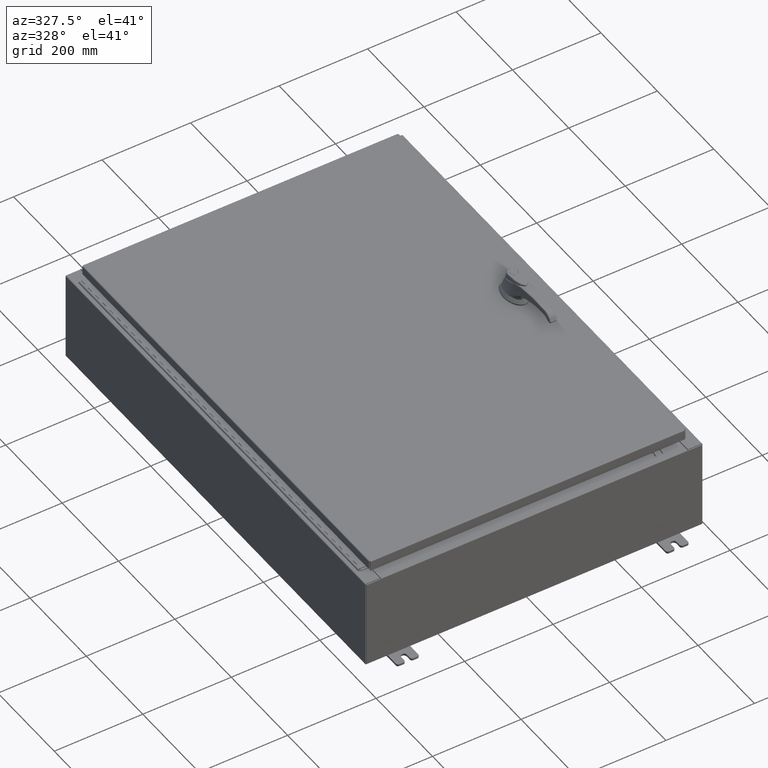
[diagram: clean part render]
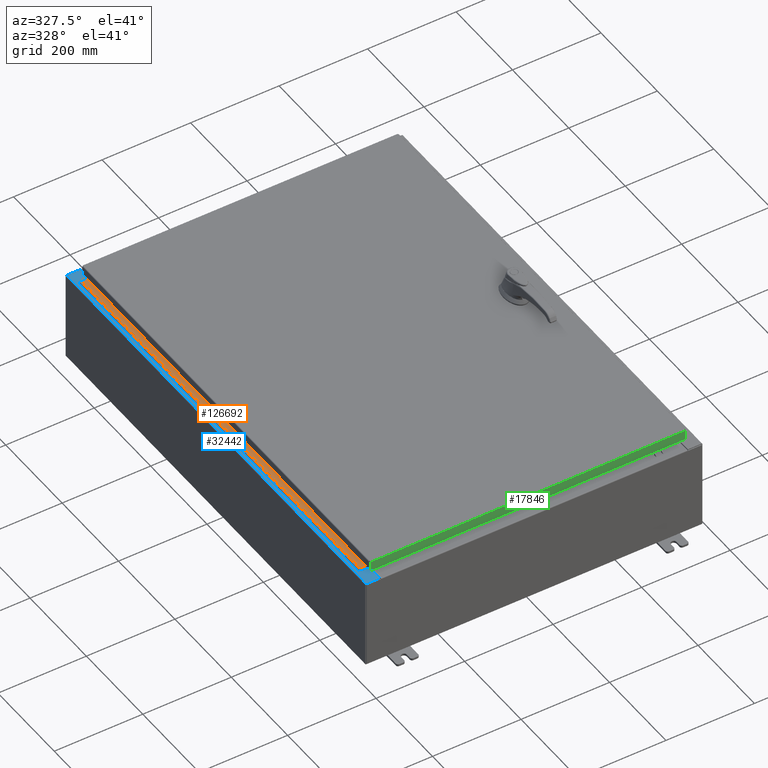
[diagram: same view with three faces highlighted in distinct colors, each labeled with its STEP entity id]
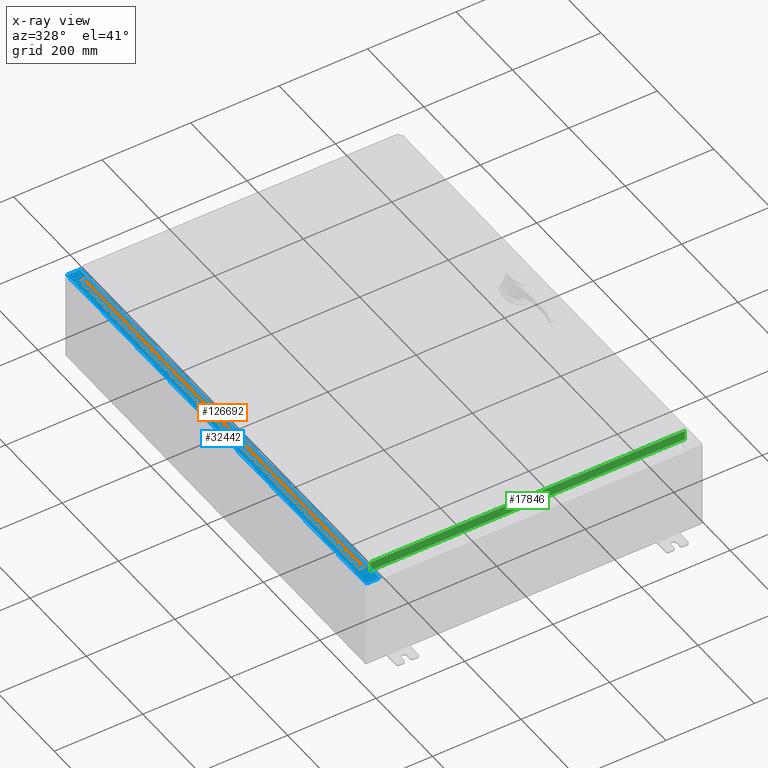
[diagram: x-ray of the same camera — body ghosted, the three highlighted faces saturated]
A machine part, auxiliary view with three faces highlighted in distinct colors.
The next image is the same camera in x-ray (body ghosted, the three faces saturated) — at least one of them is partly hidden behind the body in this view.
Their STEP definitions:

[orange] entity #126692 — the highlighted planar face has unit normal (-0, -0, 1).
#175 = EDGE_CURVE ( 'NONE', #115456, #81773, #64029, .T. ) ;
#187 = EDGE_CURVE ( 'NONE', #94626, #91647, #34605, .T. ) ;
#293 = DIRECTION ( 'NONE',  ( 0.0000000000000000000, -0.0000000000000000000, -1.000000000000000000 ) ) ;
#372 = DIRECTION ( 'NONE',  ( 3.389037039080723100E-015, 1.000000000000000000, -0.0000000000000000000 ) ) ;
#484 = CARTESIAN_POINT ( 'NONE',  ( -0.6869999999999982800, 0.5504999999999997700, -2.000000000000000000 ) ) ;
#503 = VERTEX_POINT ( 'NONE', #51848 ) ;
#869 = LINE ( 'NONE', #69759, #50854 ) ;
#880 = ORIENTED_EDGE ( 'NONE', *, *, #39815, .T. ) ;
#903 = ORIENTED_EDGE ( 'NONE', *, *, #44794, .F. ) ;
#934 = DIRECTION ( 'NONE',  ( 0.0000000000000000000, -0.0000000000000000000, -1.000000000000000000 ) ) ;
#976 = VERTEX_POINT ( 'NONE', #123675 ) ;
#980 = EDGE_CURVE ( 'NONE', #58902, #81243, #54612, .T. ) ;
#1027 = VERTEX_POINT ( 'NONE', #59810 ) ;
#1055 = CARTESIAN_POINT ( 'NONE',  ( -0.6869999999999973900, 0.8004999999999995500, -32.00000000000000000 ) ) ;
#1148 = VECTOR ( 'NONE', #77617, 39.37007874015748100 ) ;
#1264 = ORIENTED_EDGE ( 'NONE', *, *, #107978, .F. ) ;
#1619 = ORIENTED_EDGE ( 'NONE', *, *, #109199, .F. ) ;
#1907 = ORIENTED_EDGE ( 'NONE', *, *, #124795, .F. ) ;
#1955 = CARTESIAN_POINT ( 'NONE',  ( -0.6869999999999978300, 0.6754999999999996600, -26.50000000000000400 ) ) ;
#1970 = CARTESIAN_POINT ( 'NONE',  ( -0.6869999999999982800, 0.5504999999999997700, -26.50000000000000400 ) ) ;
#2025 = LINE ( 'NONE', #35999, #78300 ) ;
#2240 = CARTESIAN_POINT ( 'NONE',  ( -0.6869999999999978300, 0.6754999999999996600, -39.00000000000000000 ) ) ;
#2308 = VECTOR ( 'NONE', #5452, 39.37007874015748100 ) ;
#2327 = DIRECTION ( 'NONE',  ( 3.369016658928398200E-015, 1.000000000000000000, 0.0000000000000000000 ) ) ;
#2466 = VECTOR ( 'NONE', #12956, 39.37007874015748100 ) ;
#2498 = CARTESIAN_POINT ( 'NONE',  ( -0.6869999999999978300, 0.6754999999999996600, -17.50000000000000000 ) ) ;
#2501 = LINE ( 'NONE', #102127, #52457 ) ;
#2673 = DIRECTION ( 'NONE',  ( 0.0000000000000000000, 0.0000000000000000000, 1.000000000000000000 ) ) ;
#2725 = CARTESIAN_POINT ( 'NONE',  ( -0.6869999999999978300, 0.6754999999999996600, -31.50000000000000400 ) ) ;
#2768 = VECTOR ( 'NONE', #45110, 39.37007874015748100 ) ;
#2813 = LINE ( 'NONE', #123789, #26323 ) ;
#2822 = LINE ( 'NONE', #34835, #82202 ) ;
#2867 = EDGE_CURVE ( 'NONE', #102564, #105370, #69766, .T. ) ;
#3057 = ORIENTED_EDGE ( 'NONE', *, *, #106097, .F. ) ;
#3262 = CARTESIAN_POINT ( 'NONE',  ( -0.6869999999999973900, 0.8004999999999995500, -33.00000000000000000 ) ) ;
#3361 = VERTEX_POINT ( 'NONE', #116726 ) ;
#3413 = ORIENTED_EDGE ( 'NONE', *, *, #4057, .F. ) ;
#3439 = VERTEX_POINT ( 'NONE', #125981 ) ;
#3622 = VECTOR ( 'NONE', #9650, 39.37007874015748100 ) ;
#3660 = VERTEX_POINT ( 'NONE', #48473 ) ;
#3661 = DIRECTION ( 'NONE',  ( -3.389037039080723100E-015, -1.000000000000000000, 0.0000000000000000000 ) ) ;
#3753 = ORIENTED_EDGE ( 'NONE', *, *, #13987, .F. ) ;
#3798 = DIRECTION ( 'NONE',  ( 3.389037039080723100E-015, 1.000000000000000000, -0.0000000000000000000 ) ) ;
#3870 = CARTESIAN_POINT ( 'NONE',  ( -0.6869999999999978300, 0.6754999999999996600, -39.00000000000000000 ) ) ;
#3901 = ORIENTED_EDGE ( 'NONE', *, *, #23646, .F. ) ;
#4057 = EDGE_CURVE ( 'NONE', #6768, #53997, #72620, .T. ) ;
#4171 = CARTESIAN_POINT ( 'NONE',  ( -0.6869999999999978300, 0.6754999999999996600, -24.50000000000000000 ) ) ;
#4223 = EDGE_CURVE ( 'NONE', #124422, #89848, #95755, .T. ) ;
#4757 = VERTEX_POINT ( 'NONE', #60919 ) ;
#4896 = DIRECTION ( 'NONE',  ( 0.0000000000000000000, -0.0000000000000000000, -1.000000000000000000 ) ) ;
#5174 = LINE ( 'NONE', #23987, #81365 ) ;
#5382 = EDGE_CURVE ( 'NONE', #121392, #127437, #64661, .T. ) ;
#5430 = LINE ( 'NONE', #96070, #81622 ) ;
#5440 = VECTOR ( 'NONE', #38479, 39.37007874015748100 ) ;
#5452 = DIRECTION ( 'NONE',  ( -3.389037039080723100E-015, -1.000000000000000000, 0.0000000000000000000 ) ) ;
#5629 = VECTOR ( 'NONE', #43706, 39.37007874015748100 ) ;
#5781 = CARTESIAN_POINT ( 'NONE',  ( -0.6869999999999973900, 0.8004999999999995500, -17.99999999999999600 ) ) ;
#5974 = EDGE_CURVE ( 'NONE', #78162, #67718, #73830, .T. ) ;
#5994 = EDGE_CURVE ( 'NONE', #59320, #44848, #100111, .T. ) ;
#6074 = ORIENTED_EDGE ( 'NONE', *, *, #12068, .F. ) ;
#6197 = DIRECTION ( 'NONE',  ( 3.389037039080723100E-015, 1.000000000000000000, -0.0000000000000000000 ) ) ;
#6231 = DIRECTION ( 'NONE',  ( 0.0000000000000000000, 0.0000000000000000000, 1.000000000000000000 ) ) ;
#6401 = CARTESIAN_POINT ( 'NONE',  ( -0.6869999999999973900, 0.8004999999999995500, -9.500000000000000000 ) ) ;
#6423 = ORIENTED_EDGE ( 'NONE', *, *, #65584, .F. ) ;
#6530 = DIRECTION ( 'NONE',  ( -3.389037039080723100E-015, -1.000000000000000000, 0.0000000000000000000 ) ) ;
#6609 = VECTOR ( 'NONE', #122423, 39.37007874015748100 ) ;
#6645 = LINE ( 'NONE', #16248, #56498 ) ;
#6698 = VERTEX_POINT ( 'NONE', #28173 ) ;
#6768 = VERTEX_POINT ( 'NONE', #85118 ) ;
#6950 = ORIENTED_EDGE ( 'NONE', *, *, #48762, .F. ) ;
#7030 = VECTOR ( 'NONE', #90597, 39.37007874015748100 ) ;
#7031 = VECTOR ( 'NONE', #99656, 39.37007874015748100 ) ;
#7154 = VECTOR ( 'NONE', #34036, 39.37007874015748100 ) ;
#7316 = DIRECTION ( 'NONE',  ( 3.389037039080723100E-015, 1.000000000000000000, -0.0000000000000000000 ) ) ;
#7479 = LINE ( 'NONE', #88926, #31008 ) ;
#7487 = VECTOR ( 'NONE', #100005, 39.37007874015748100 ) ;
#7726 = CARTESIAN_POINT ( 'NONE',  ( -0.6869999999999973900, 0.8004999999999995500, -17.50000000000000000 ) ) ;
#7941 = ORIENTED_EDGE ( 'NONE', *, *, #12283, .T. ) ;
#7946 = LINE ( 'NONE', #83815, #54705 ) ;
#7957 = VECTOR ( 'NONE', #32364, 39.37007874015748100 ) ;
#7981 = CARTESIAN_POINT ( 'NONE',  ( -0.6869999999999978300, 0.6754999999999996600, -33.50000000000000000 ) ) ;
#8068 = CARTESIAN_POINT ( 'NONE',  ( -0.6869999999999973900, 0.8004999999999995500, -25.50000000000000400 ) ) ;
#8192 = EDGE_CURVE ( 'NONE', #124258, #127504, #101489, .T. ) ;
#8220 = EDGE_CURVE ( 'NONE', #20596, #122475, #22464, .T. ) ;
#8222 = VERTEX_POINT ( 'NONE', #108536 ) ;
#8236 = DIRECTION ( 'NONE',  ( -3.389037039080723100E-015, -1.000000000000000000, 0.0000000000000000000 ) ) ;
#8290 = EDGE_CURVE ( 'NONE', #56542, #115101, #121738, .T. ) ;
#8345 = ORIENTED_EDGE ( 'NONE', *, *, #42714, .F. ) ;
#8875 = DIRECTION ( 'NONE',  ( 0.0000000000000000000, 0.0000000000000000000, 1.000000000000000000 ) ) ;
#9023 = EDGE_CURVE ( 'NONE', #503, #28543, #75098, .T. ) ;
#9244 = LINE ( 'NONE', #90468, #23323 ) ;
#9255 = VECTOR ( 'NONE', #27606, 39.37007874015748100 ) ;
#9621 = LINE ( 'NONE', #15127, #56330 ) ;
#9639 = LINE ( 'NONE', #3262, #85751 ) ;
#9650 = DIRECTION ( 'NONE',  ( 0.0000000000000000000, 0.0000000000000000000, 1.000000000000000000 ) ) ;
#9785 = ORIENTED_EDGE ( 'NONE', *, *, #9023, .F. ) ;
#9802 = CARTESIAN_POINT ( 'NONE',  ( -0.6869999999999978300, 0.6754999999999996600, -36.50000000000000000 ) ) ;
#9823 = DIRECTION ( 'NONE',  ( 0.0000000000000000000, 0.0000000000000000000, 1.000000000000000000 ) ) ;
#9992 = LINE ( 'NONE', #125691, #112484 ) ;
#10074 = VERTEX_POINT ( 'NONE', #92505 ) ;
#10157 = LINE ( 'NONE', #80278, #39882 ) ;
#10289 = LINE ( 'NONE', #93268, #7154 ) ;
#10368 = VECTOR ( 'NONE', #22118, 39.37007874015748100 ) ;
#10490 = CARTESIAN_POINT ( 'NONE',  ( -0.6869999999999982800, 0.5504999999999997700, -37.50000000000000000 ) ) ;
#10516 = LINE ( 'NONE', #100099, #83562 ) ;
#10578 = DIRECTION ( 'NONE',  ( 3.389037039080723100E-015, 1.000000000000000000, -0.0000000000000000000 ) ) ;
#10582 = VECTOR ( 'NONE', #107257, 39.37007874015748100 ) ;
#10676 = CARTESIAN_POINT ( 'NONE',  ( -0.6869999999999973900, 0.8004999999999995500, -21.50000000000000400 ) ) ;
#10801 = LINE ( 'NONE', #63245, #86865 ) ;
#10819 = CARTESIAN_POINT ( 'NONE',  ( -0.6869999999999973900, 0.8004999999999995500, -29.50000000000000000 ) ) ;
#11234 = DIRECTION ( 'NONE',  ( 0.0000000000000000000, -0.0000000000000000000, -1.000000000000000000 ) ) ;
#11307 = EDGE_CURVE ( 'NONE', #50480, #31723, #116204, .T. ) ;
#11441 = VECTOR ( 'NONE', #75773, 39.37007874015748100 ) ;
#11533 = DIRECTION ( 'NONE',  ( -3.389037039080723100E-015, -1.000000000000000000, 0.0000000000000000000 ) ) ;
#11552 = ORIENTED_EDGE ( 'NONE', *, *, #77340, .F. ) ;
#11590 = VERTEX_POINT ( 'NONE', #74345 ) ;
#11733 = VECTOR ( 'NONE', #125316, 39.37007874015748100 ) ;
#11754 = CARTESIAN_POINT ( 'NONE',  ( -0.6869999999999978300, 0.6754999999999996600, -39.00000000000000000 ) ) ;
#11851 = DIRECTION ( 'NONE',  ( 0.0000000000000000000, -0.0000000000000000000, -1.000000000000000000 ) ) ;
#12068 = EDGE_CURVE ( 'NONE', #21730, #41898, #15359, .T. ) ;
#12080 = CARTESIAN_POINT ( 'NONE',  ( -0.6869999999999978300, 0.6754999999999996600, -28.00000000000000000 ) ) ;
#12283 = EDGE_CURVE ( 'NONE', #63879, #85198, #2813, .T. ) ;
#12370 = ORIENTED_EDGE ( 'NONE', *, *, #15090, .F. ) ;
#12443 = EDGE_CURVE ( 'NONE', #66287, #10074, #13710, .T. ) ;
#12523 = ORIENTED_EDGE ( 'NONE', *, *, #120612, .T. ) ;
#12765 = CARTESIAN_POINT ( 'NONE',  ( -0.6869999999999982800, 0.5504999999999997700, -36.50000000000000000 ) ) ;
#12791 = LINE ( 'NONE', #37919, #59546 ) ;
#12956 = DIRECTION ( 'NONE',  ( 0.0000000000000000000, 0.0000000000000000000, 1.000000000000000000 ) ) ;
#13050 = CARTESIAN_POINT ( 'NONE',  ( -0.6869999999999978300, 0.6754999999999996600, -22.50000000000000000 ) ) ;
#13083 = DIRECTION ( 'NONE',  ( 3.389037039080723100E-015, 1.000000000000000000, -0.0000000000000000000 ) ) ;
#13100 = ORIENTED_EDGE ( 'NONE', *, *, #44348, .F. ) ;
#13170 = VERTEX_POINT ( 'NONE', #77723 ) ;
#13223 = LINE ( 'NONE', #44061, #86221 ) ;
#13492 = VERTEX_POINT ( 'NONE', #101816 ) ;
#13503 = VECTOR ( 'NONE', #117320, 39.37007874015748100 ) ;
#13710 = LINE ( 'NONE', #56183, #116230 ) ;
#13743 = EDGE_CURVE ( 'NONE', #117027, #59316, #105074, .T. ) ;
#13942 = EDGE_CURVE ( 'NONE', #20596, #59751, #115974, .T. ) ;
#13987 = EDGE_CURVE ( 'NONE', #121611, #14605, #106554, .T. ) ;
#14015 = LINE ( 'NONE', #6401, #49967 ) ;
#14137 = ORIENTED_EDGE ( 'NONE', *, *, #74735, .F. ) ;
#14252 = CARTESIAN_POINT ( 'NONE',  ( -0.6869999999999978300, 0.6754999999999996600, -2.999999999999999600 ) ) ;
#14394 = ORIENTED_EDGE ( 'NONE', *, *, #8220, .F. ) ;
#14439 = CARTESIAN_POINT ( 'NONE',  ( -0.6869999999999978300, 0.6754999999999996600, -39.00000000000000000 ) ) ;
#14529 = LINE ( 'NONE', #89854, #90672 ) ;
#14605 = VERTEX_POINT ( 'NONE', #42711 ) ;
#14703 = EDGE_CURVE ( 'NONE', #95505, #98801, #66243, .T. ) ;
#15029 = CARTESIAN_POINT ( 'NONE',  ( -0.6869999999999973900, 0.8004999999999995500, -38.50000000000000000 ) ) ;
#15090 = EDGE_CURVE ( 'NONE', #93816, #57273, #28950, .T. ) ;
#15127 = CARTESIAN_POINT ( 'NONE',  ( -0.6869999999999978300, 0.6754999999999996600, -39.00000000000000000 ) ) ;
#15215 = CARTESIAN_POINT ( 'NONE',  ( -0.6869999999999978300, 0.6754999999999996600, -7.000000000000000000 ) ) ;
#15234 = LINE ( 'NONE', #113994, #88231 ) ;
#15267 = EDGE_CURVE ( 'NONE', #35524, #108032, #19541, .T. ) ;
#15333 = ORIENTED_EDGE ( 'NONE', *, *, #117291, .F. ) ;
#15359 = LINE ( 'NONE', #119341, #117852 ) ;
#15369 = EDGE_CURVE ( 'NONE', #16595, #104316, #13223, .T. ) ;
#15778 = DIRECTION ( 'NONE',  ( 0.0000000000000000000, 0.0000000000000000000, 1.000000000000000000 ) ) ;
#15853 = DIRECTION ( 'NONE',  ( 0.0000000000000000000, 0.0000000000000000000, 1.000000000000000000 ) ) ;
#15872 = ORIENTED_EDGE ( 'NONE', *, *, #2867, .F. ) ;
#15884 = EDGE_CURVE ( 'NONE', #103240, #92538, #49033, .T. ) ;
#15927 = LINE ( 'NONE', #45795, #71937 ) ;
#16013 = CARTESIAN_POINT ( 'NONE',  ( -0.6869999999999973900, 0.8004999999999995500, -5.500000000000000000 ) ) ;
#16030 = VECTOR ( 'NONE', #46156, 39.37007874015748100 ) ;
#16050 = EDGE_CURVE ( 'NONE', #17543, #16595, #9992, .T. ) ;
#16181 = ORIENTED_EDGE ( 'NONE', *, *, #36064, .T. ) ;
#16248 = CARTESIAN_POINT ( 'NONE',  ( -0.6869999999999973900, 0.8004999999999995500, -10.50000000000000000 ) ) ;
#16292 = ORIENTED_EDGE ( 'NONE', *, *, #50674, .F. ) ;
#16307 = VERTEX_POINT ( 'NONE', #80604 ) ;
#16438 = EDGE_CURVE ( 'NONE', #71906, #61704, #113981, .T. ) ;
#16515 = CARTESIAN_POINT ( 'NONE',  ( -0.6869999999999978300, 0.6754999999999996600, -34.50000000000000000 ) ) ;
#16528 = VERTEX_POINT ( 'NONE', #83553 ) ;
#16583 = EDGE_CURVE ( 'NONE', #34616, #3361, #48898, .T. ) ;
#16595 = VERTEX_POINT ( 'NONE', #95990 ) ;
#16873 = EDGE_CURVE ( 'NONE', #6698, #39306, #27062, .T. ) ;
#17027 = EDGE_CURVE ( 'NONE', #63879, #76523, #96734, .T. ) ;
#17065 = DIRECTION ( 'NONE',  ( 3.389037039080723100E-015, 1.000000000000000000, -0.0000000000000000000 ) ) ;
#17075 = CARTESIAN_POINT ( 'NONE',  ( -0.6869999999999973900, 0.8004999999999995500, -5.000000000000000000 ) ) ;
#17163 = ORIENTED_EDGE ( 'NONE', *, *, #20866, .F. ) ;
#17170 = CARTESIAN_POINT ( 'NONE',  ( -0.6869999999999978300, 0.6754999999999996600, -27.00000000000000000 ) ) ;
#17430 = CARTESIAN_POINT ( 'NONE',  ( -0.6869999999999973900, 0.8004999999999995500, -29.99999999999999600 ) ) ;
#17543 = VERTEX_POINT ( 'NONE', #1970 ) ;
#17671 = CARTESIAN_POINT ( 'NONE',  ( -0.6869999999999982800, 0.5504999999999997700, -8.000000000000000000 ) ) ;
#17735 = DIRECTION ( 'NONE',  ( -3.389037039080723100E-015, -1.000000000000000000, 0.0000000000000000000 ) ) ;
#17933 = LINE ( 'NONE', #17075, #117299 ) ;
#18124 = CARTESIAN_POINT ( 'NONE',  ( -0.6869999999999978300, 0.6754999999999996600, -32.00000000000000000 ) ) ;
#18220 = CARTESIAN_POINT ( 'NONE',  ( -0.6869999999999973900, 0.8004999999999995500, -27.50000000000000000 ) ) ;
#18443 = CARTESIAN_POINT ( 'NONE',  ( -0.6869999999999973900, 0.8004999999999995500, -14.99999999999999800 ) ) ;
#18500 = DIRECTION ( 'NONE',  ( 3.389037039080723100E-015, 1.000000000000000000, -0.0000000000000000000 ) ) ;
#18522 = ORIENTED_EDGE ( 'NONE', *, *, #42910, .T. ) ;
#18717 = ORIENTED_EDGE ( 'NONE', *, *, #108006, .F. ) ;
#18910 = ORIENTED_EDGE ( 'NONE', *, *, #16438, .F. ) ;
#19122 = VECTOR ( 'NONE', #63244, 39.37007874015748100 ) ;
#19301 = ORIENTED_EDGE ( 'NONE', *, *, #125580, .F. ) ;
#19541 = LINE ( 'NONE', #118998, #118875 ) ;
#19752 = DIRECTION ( 'NONE',  ( 0.0000000000000000000, 0.0000000000000000000, 1.000000000000000000 ) ) ;
#19837 = VECTOR ( 'NONE', #60841, 39.37007874015748100 ) ;
#20016 = CARTESIAN_POINT ( 'NONE',  ( -0.6869999999999978300, 0.6754999999999996600, -30.50000000000000400 ) ) ;
#20502 = VERTEX_POINT ( 'NONE', #47934 ) ;
#20514 = DIRECTION ( 'NONE',  ( 3.389037039080723100E-015, 1.000000000000000000, -0.0000000000000000000 ) ) ;
#20596 = VERTEX_POINT ( 'NONE', #68661 ) ;
#20866 = EDGE_CURVE ( 'NONE', #61704, #111587, #5430, .T. ) ;
#21034 = VECTOR ( 'NONE', #27889, 39.37007874015748100 ) ;
#21156 = VERTEX_POINT ( 'NONE', #122080 ) ;
#21209 = CARTESIAN_POINT ( 'NONE',  ( -0.6869999999999982800, 0.5504999999999997700, -5.500000000000000000 ) ) ;
#21321 = EDGE_CURVE ( 'NONE', #120515, #109943, #100038, .T. ) ;
#21540 = VERTEX_POINT ( 'NONE', #38571 ) ;
#21559 = ORIENTED_EDGE ( 'NONE', *, *, #11307, .F. ) ;
#21670 = CARTESIAN_POINT ( 'NONE',  ( -0.6869999999999973900, 0.8004999999999995500, -35.50000000000000000 ) ) ;
#21689 = EDGE_CURVE ( 'NONE', #103799, #99706, #25630, .T. ) ;
#21730 = VERTEX_POINT ( 'NONE', #50706 ) ;
#21981 = CARTESIAN_POINT ( 'NONE',  ( -0.6869999999999978300, 0.6754999999999996600, -39.00000000000000000 ) ) ;
#22056 = CARTESIAN_POINT ( 'NONE',  ( -0.6869999999999982800, 0.5504999999999997700, -38.50000000000000000 ) ) ;
#22068 = EDGE_CURVE ( 'NONE', #44363, #121611, #30307, .T. ) ;
#22118 = DIRECTION ( 'NONE',  ( 0.0000000000000000000, -0.0000000000000000000, -1.000000000000000000 ) ) ;
#22234 = VERTEX_POINT ( 'NONE', #117662 ) ;
#22377 = FACE_OUTER_BOUND ( 'NONE', #53084, .T. ) ;
#22391 = ORIENTED_EDGE ( 'NONE', *, *, #126513, .T. ) ;
#22435 = DIRECTION ( 'NONE',  ( -3.389037039080723100E-015, -1.000000000000000000, 0.0000000000000000000 ) ) ;
#22464 = LINE ( 'NONE', #123418, #35009 ) ;
#22561 = VECTOR ( 'NONE', #72047, 39.37007874015748100 ) ;
#22869 = DIRECTION ( 'NONE',  ( 0.0000000000000000000, -0.0000000000000000000, -1.000000000000000000 ) ) ;
#22880 = CARTESIAN_POINT ( 'NONE',  ( -0.6869999999999998300, 0.07549999999999991400, 0.0000000000000000000 ) ) ;
#23203 = CARTESIAN_POINT ( 'NONE',  ( -0.6869999999999978300, 0.6754999999999996600, -7.499999999999999100 ) ) ;
#23323 = VECTOR ( 'NONE', #934, 39.37007874015748100 ) ;
#23334 = CARTESIAN_POINT ( 'NONE',  ( -0.6869999999999973900, 0.8004999999999995500, -12.49999999999999800 ) ) ;
#23445 = LINE ( 'NONE', #87662, #46787 ) ;
#23451 = EDGE_CURVE ( 'NONE', #66287, #40163, #2025, .T. ) ;
#23510 = ORIENTED_EDGE ( 'NONE', *, *, #88228, .T. ) ;
#23528 = CARTESIAN_POINT ( 'NONE',  ( -0.6869999999999978300, 0.6754999999999996600, -18.50000000000000000 ) ) ;
#23646 = EDGE_CURVE ( 'NONE', #87154, #124258, #45775, .T. ) ;
#23757 = VERTEX_POINT ( 'NONE', #112144 ) ;
#23954 = CARTESIAN_POINT ( 'NONE',  ( -0.6869999999999973900, 0.8004999999999995500, -4.000000000000000000 ) ) ;
#23987 = CARTESIAN_POINT ( 'NONE',  ( -0.6869999999999973900, 0.8004999999999995500, -7.499999999999999100 ) ) ;
#24177 = ORIENTED_EDGE ( 'NONE', *, *, #13743, .T. ) ;
#24194 = AXIS2_PLACEMENT_3D ( 'NONE', #121348, #62006, #2327 ) ;
#24250 = LINE ( 'NONE', #10490, #126577 ) ;
#24356 = VECTOR ( 'NONE', #67641, 39.37007874015748100 ) ;
#24402 = DIRECTION ( 'NONE',  ( -3.389037039080723100E-015, -1.000000000000000000, 0.0000000000000000000 ) ) ;
#24616 = DIRECTION ( 'NONE',  ( 3.389037039080723100E-015, 1.000000000000000000, -0.0000000000000000000 ) ) ;
#24856 = VECTOR ( 'NONE', #115401, 39.37007874015748100 ) ;
#24859 = DIRECTION ( 'NONE',  ( -3.389037039080723100E-015, -1.000000000000000000, 0.0000000000000000000 ) ) ;
#24863 = DIRECTION ( 'NONE',  ( -3.389037039080723100E-015, -1.000000000000000000, 0.0000000000000000000 ) ) ;
#24999 = DIRECTION ( 'NONE',  ( 0.0000000000000000000, 0.0000000000000000000, 1.000000000000000000 ) ) ;
#25112 = CARTESIAN_POINT ( 'NONE',  ( -0.6869999999999982800, 0.5504999999999997700, -15.50000000000000000 ) ) ;
#25176 = EDGE_CURVE ( 'NONE', #118993, #60754, #68703, .T. ) ;
#25600 = VECTOR ( 'NONE', #84514, 39.37007874015748100 ) ;
#25630 = LINE ( 'NONE', #50272, #127988 ) ;
#25734 = LINE ( 'NONE', #68419, #49061 ) ;
#25741 = EDGE_CURVE ( 'NONE', #64731, #76672, #7946, .T. ) ;
#25785 = ORIENTED_EDGE ( 'NONE', *, *, #16583, .F. ) ;
#25977 = LINE ( 'NONE', #95248, #95655 ) ;
#26009 = CARTESIAN_POINT ( 'NONE',  ( -0.6869999999999973900, 0.8004999999999995500, -3.500000000000000000 ) ) ;
#26066 = VECTOR ( 'NONE', #105226, 39.37007874015748100 ) ;
#26261 = ORIENTED_EDGE ( 'NONE', *, *, #25741, .T. ) ;
#26323 = VECTOR ( 'NONE', #44556, 39.37007874015748100 ) ;
#26379 = DIRECTION ( 'NONE',  ( -3.389037039080723100E-015, -1.000000000000000000, 0.0000000000000000000 ) ) ;
#26398 = ORIENTED_EDGE ( 'NONE', *, *, #119505, .F. ) ;
#26469 = ORIENTED_EDGE ( 'NONE', *, *, #187, .F. ) ;
#26829 = EDGE_CURVE ( 'NONE', #3660, #58902, #121207, .T. ) ;
#26868 = CARTESIAN_POINT ( 'NONE',  ( -0.6869999999999978300, 0.6754999999999996600, -39.00000000000000000 ) ) ;
#26885 = DIRECTION ( 'NONE',  ( 0.0000000000000000000, -0.0000000000000000000, -1.000000000000000000 ) ) ;
#27062 = LINE ( 'NONE', #40626, #79838 ) ;
#27108 = ORIENTED_EDGE ( 'NONE', *, *, #110972, .F. ) ;
#27315 = VECTOR ( 'NONE', #41996, 39.37007874015748100 ) ;
#27363 = VECTOR ( 'NONE', #56172, 39.37007874015748100 ) ;
#27381 = ORIENTED_EDGE ( 'NONE', *, *, #105122, .T. ) ;
#27450 = VECTOR ( 'NONE', #56904, 39.37007874015748100 ) ;
#27574 = LINE ( 'NONE', #25112, #109755 ) ;
#27590 = CARTESIAN_POINT ( 'NONE',  ( -0.6869999999999978300, 0.6754999999999996600, -16.50000000000000000 ) ) ;
#27594 = VECTOR ( 'NONE', #86350, 39.37007874015748100 ) ;
#27606 = DIRECTION ( 'NONE',  ( 0.0000000000000000000, 0.0000000000000000000, 1.000000000000000000 ) ) ;
#27763 = LINE ( 'NONE', #8068, #1148 ) ;
#27889 = DIRECTION ( 'NONE',  ( -3.389037039080723100E-015, -1.000000000000000000, 0.0000000000000000000 ) ) ;
#28014 = VERTEX_POINT ( 'NONE', #127284 ) ;
#28136 = EDGE_CURVE ( 'NONE', #21156, #16307, #88332, .T. ) ;
#28173 = CARTESIAN_POINT ( 'NONE',  ( -0.6869999999999982800, 0.5504999999999997700, -4.500000000000000000 ) ) ;
#28181 = VECTOR ( 'NONE', #18500, 39.37007874015748100 ) ;
#28207 = EDGE_CURVE ( 'NONE', #64731, #44363, #55821, .T. ) ;
#28435 = VERTEX_POINT ( 'NONE', #78694 ) ;
#28543 = VERTEX_POINT ( 'NONE', #92007 ) ;
#28659 = DIRECTION ( 'NONE',  ( 0.0000000000000000000, -0.0000000000000000000, -1.000000000000000000 ) ) ;
#28950 = LINE ( 'NONE', #15029, #2308 ) ;
#29132 = CARTESIAN_POINT ( 'NONE',  ( -0.6869999999999982800, 0.5504999999999997700, -14.49999999999999800 ) ) ;
#29225 = DIRECTION ( 'NONE',  ( -3.389037039080723100E-015, -1.000000000000000000, 0.0000000000000000000 ) ) ;
#29405 = VECTOR ( 'NONE', #87261, 39.37007874015748100 ) ;
#29441 = CARTESIAN_POINT ( 'NONE',  ( -0.6869999999999973900, 0.8004999999999995500, -34.50000000000000000 ) ) ;
#29597 = EDGE_CURVE ( 'NONE', #61380, #120352, #100455, .T. ) ;
#30117 = LINE ( 'NONE', #73033, #6609 ) ;
#30127 = ORIENTED_EDGE ( 'NONE', *, *, #108832, .F. ) ;
#30175 = VERTEX_POINT ( 'NONE', #108224 ) ;
#30299 = LINE ( 'NONE', #118621, #3622 ) ;
#30307 = LINE ( 'NONE', #65692, #79902 ) ;
#30432 = LINE ( 'NONE', #91484, #80011 ) ;
#30459 = CARTESIAN_POINT ( 'NONE',  ( -0.6869999999999982800, 0.5504999999999997700, -12.99999999999999800 ) ) ;
#30553 = DIRECTION ( 'NONE',  ( 0.0000000000000000000, -0.0000000000000000000, -1.000000000000000000 ) ) ;
#30688 = VERTEX_POINT ( 'NONE', #38893 ) ;
#30749 = CARTESIAN_POINT ( 'NONE',  ( -0.6869999999999982800, 0.5504999999999997700, -7.499999999999999100 ) ) ;
#30767 = VECTOR ( 'NONE', #63629, 39.37007874015748100 ) ;
#30776 = VECTOR ( 'NONE', #111386, 39.37007874015748100 ) ;
#30811 = CARTESIAN_POINT ( 'NONE',  ( -0.6869999999999978300, 0.6754999999999996600, -26.00000000000000000 ) ) ;
#30867 = CARTESIAN_POINT ( 'NONE',  ( -0.6869999999999982800, 0.5504999999999997700, -3.500000000000000000 ) ) ;
#30880 = CARTESIAN_POINT ( 'NONE',  ( -0.6869999999999982800, 0.5504999999999997700, -21.50000000000000400 ) ) ;
#30913 = CARTESIAN_POINT ( 'NONE',  ( -0.6869999999999978300, 0.6754999999999996600, -14.99999999999999800 ) ) ;
#30960 = CARTESIAN_POINT ( 'NONE',  ( -0.6869999999999982800, 0.5504999999999997700, -39.00000000000000000 ) ) ;
#31008 = VECTOR ( 'NONE', #98834, 39.37007874015748100 ) ;
#31203 = LINE ( 'NONE', #123846, #54436 ) ;
#31219 = CARTESIAN_POINT ( 'NONE',  ( -0.6869999999999978300, 0.6754999999999996600, -22.00000000000000000 ) ) ;
#31597 = CARTESIAN_POINT ( 'NONE',  ( -0.6869999999999982800, 0.5504999999999997700, -12.49999999999999800 ) ) ;
#31636 = VERTEX_POINT ( 'NONE', #112516 ) ;
#31723 = VERTEX_POINT ( 'NONE', #115106 ) ;
#31819 = EDGE_CURVE ( 'NONE', #118993, #124014, #124455, .T. ) ;
#31829 = LINE ( 'NONE', #126019, #84447 ) ;
#32132 = CARTESIAN_POINT ( 'NONE',  ( -0.6869999999999973900, 0.8004999999999995500, -12.99999999999999800 ) ) ;
#32162 = ORIENTED_EDGE ( 'NONE', *, *, #110134, .F. ) ;
#32364 = DIRECTION ( 'NONE',  ( 0.0000000000000000000, 0.0000000000000000000, 1.000000000000000000 ) ) ;
#32429 = CARTESIAN_POINT ( 'NONE',  ( -0.6869999999999982800, 0.5504999999999997700, -6.499999999999999100 ) ) ;
#32665 = LINE ( 'NONE', #109240, #58985 ) ;
#32799 = CARTESIAN_POINT ( 'NONE',  ( -0.6869999999999973900, 0.8004999999999995500, -19.50000000000000000 ) ) ;
#32904 = CARTESIAN_POINT ( 'NONE',  ( -0.6869999999999978300, 0.6754999999999996600, -17.00000000000000000 ) ) ;
#32969 = CARTESIAN_POINT ( 'NONE',  ( -0.6869999999999982800, 0.5504999999999997700, -19.50000000000000000 ) ) ;
#33147 = VERTEX_POINT ( 'NONE', #99541 ) ;
#33265 = EDGE_CURVE ( 'NONE', #85383, #99706, #74612, .T. ) ;
#33425 = DIRECTION ( 'NONE',  ( -3.389037039080723100E-015, -1.000000000000000000, 0.0000000000000000000 ) ) ;
#33617 = EDGE_CURVE ( 'NONE', #76523, #74190, #76092, .T. ) ;
#33689 = LINE ( 'NONE', #21209, #7030 ) ;
#33848 = ORIENTED_EDGE ( 'NONE', *, *, #8192, .F. ) ;
#33869 = VERTEX_POINT ( 'NONE', #102351 ) ;
#33974 = EDGE_CURVE ( 'NONE', #83120, #17543, #77607, .T. ) ;
#34028 = LINE ( 'NONE', #114739, #113024 ) ;
#34036 = DIRECTION ( 'NONE',  ( 3.389037039080723100E-015, 1.000000000000000000, -0.0000000000000000000 ) ) ;
#34078 = ORIENTED_EDGE ( 'NONE', *, *, #112981, .F. ) ;
#34112 = VERTEX_POINT ( 'NONE', #48257 ) ;
#34214 = EDGE_CURVE ( 'NONE', #115101, #13492, #32665, .T. ) ;
#34479 = CARTESIAN_POINT ( 'NONE',  ( -0.6869999999999982800, 0.5504999999999997700, -21.50000000000000400 ) ) ;
#34503 = ORIENTED_EDGE ( 'NONE', *, *, #72068, .F. ) ;
#34535 = DIRECTION ( 'NONE',  ( 3.389037039080723100E-015, 1.000000000000000000, -0.0000000000000000000 ) ) ;
#34605 = LINE ( 'NONE', #16013, #84137 ) ;
#34616 = VERTEX_POINT ( 'NONE', #76313 ) ;
#34835 = CARTESIAN_POINT ( 'NONE',  ( -0.6869999999999978300, 0.6754999999999996600, -39.00000000000000000 ) ) ;
#35009 = VECTOR ( 'NONE', #57540, 39.37007874015748100 ) ;
#35052 = CARTESIAN_POINT ( 'NONE',  ( -0.6869999999999978300, 0.6754999999999996600, -39.00000000000000000 ) ) ;
#35059 = DIRECTION ( 'NONE',  ( 0.0000000000000000000, 0.0000000000000000000, 1.000000000000000000 ) ) ;
#35079 = CARTESIAN_POINT ( 'NONE',  ( -0.6869999999999978300, 0.6754999999999996600, -23.99999999999999600 ) ) ;
#35098 = VERTEX_POINT ( 'NONE', #2725 ) ;
#35191 = ORIENTED_EDGE ( 'NONE', *, *, #54120, .F. ) ;
#35305 = EDGE_CURVE ( 'NONE', #33869, #87198, #34028, .T. ) ;
#35459 = CARTESIAN_POINT ( 'NONE',  ( -0.6869999999999973900, 0.8004999999999995500, -33.50000000000000000 ) ) ;
#35481 = LINE ( 'NONE', #44944, #108191 ) ;
#35524 = VERTEX_POINT ( 'NONE', #70479 ) ;
#35900 = VECTOR ( 'NONE', #75862, 39.37007874015748100 ) ;
#35999 = CARTESIAN_POINT ( 'NONE',  ( -0.6869999999999978300, 0.6754999999999996600, -39.00000000000000000 ) ) ;
#36014 = DIRECTION ( 'NONE',  ( 0.0000000000000000000, 0.0000000000000000000, 1.000000000000000000 ) ) ;
#36064 = EDGE_CURVE ( 'NONE', #34616, #13492, #109769, .T. ) ;
#36078 = DIRECTION ( 'NONE',  ( 3.389037039080723100E-015, 1.000000000000000000, -0.0000000000000000000 ) ) ;
#36826 = CARTESIAN_POINT ( 'NONE',  ( -0.6869999999999982800, 0.5504999999999997700, -8.500000000000000000 ) ) ;
#36879 = VECTOR ( 'NONE', #3798, 39.37007874015748100 ) ;
#36994 = CARTESIAN_POINT ( 'NONE',  ( -0.6869999999999973900, 0.8004999999999995500, -6.499999999999999100 ) ) ;
#37118 = CARTESIAN_POINT ( 'NONE',  ( -0.6869999999999978300, 0.6754999999999996600, -14.49999999999999800 ) ) ;
#37158 = ORIENTED_EDGE ( 'NONE', *, *, #31819, .T. ) ;
#37181 = CARTESIAN_POINT ( 'NONE',  ( -0.6869999999999973900, 0.8004999999999995500, -32.50000000000000000 ) ) ;
#37210 = LINE ( 'NONE', #47003, #63549 ) ;
#37230 = VECTOR ( 'NONE', #22435, 39.37007874015748100 ) ;
#37275 = ORIENTED_EDGE ( 'NONE', *, *, #121218, .T. ) ;
#37375 = ORIENTED_EDGE ( 'NONE', *, *, #45493, .F. ) ;
#37537 = DIRECTION ( 'NONE',  ( -3.389037039080723100E-015, -1.000000000000000000, 0.0000000000000000000 ) ) ;
#37606 = CARTESIAN_POINT ( 'NONE',  ( -0.6869999999999973900, 0.8004999999999995500, -38.00000000000000000 ) ) ;
#37876 = ORIENTED_EDGE ( 'NONE', *, *, #29597, .T. ) ;
#37919 = CARTESIAN_POINT ( 'NONE',  ( -0.6870000000000022800, -0.6245000000000003900, -39.00000000000000000 ) ) ;
#38120 = LINE ( 'NONE', #56652, #90780 ) ;
#38136 = VECTOR ( 'NONE', #127174, 39.37007874015748100 ) ;
#38204 = VECTOR ( 'NONE', #92908, 39.37007874015748100 ) ;
#38207 = VECTOR ( 'NONE', #113258, 39.37007874015748100 ) ;
#38265 = ORIENTED_EDGE ( 'NONE', *, *, #98856, .F. ) ;
#38284 = EDGE_CURVE ( 'NONE', #84573, #8222, #112512, .T. ) ;
#38479 = DIRECTION ( 'NONE',  ( 3.389037039080723100E-015, 1.000000000000000000, -0.0000000000000000000 ) ) ;
#38571 = CARTESIAN_POINT ( 'NONE',  ( -0.6869999999999978300, 0.6754999999999996600, -38.00000000000000000 ) ) ;
#38591 = ORIENTED_EDGE ( 'NONE', *, *, #40592, .F. ) ;
#38756 = CARTESIAN_POINT ( 'NONE',  ( -0.6869999999999982800, 0.5504999999999997700, -10.00000000000000000 ) ) ;
#38893 = CARTESIAN_POINT ( 'NONE',  ( -0.6869999999999982800, 0.5504999999999997700, -12.49999999999999800 ) ) ;
#39306 = VERTEX_POINT ( 'NONE', #87042 ) ;
#39503 = VECTOR ( 'NONE', #73462, 39.37007874015748100 ) ;
#39770 = LINE ( 'NONE', #94130, #118814 ) ;
#39815 = EDGE_CURVE ( 'NONE', #20502, #33147, #38120, .T. ) ;
#39846 = CARTESIAN_POINT ( 'NONE',  ( -0.6869999999999978300, 0.6754999999999996600, -3.500000000000000000 ) ) ;
#39882 = VECTOR ( 'NONE', #40865, 39.37007874015748100 ) ;
#40017 = DIRECTION ( 'NONE',  ( 3.369016658928398200E-015, 1.000000000000000000, 0.0000000000000000000 ) ) ;
#40090 = VECTOR ( 'NONE', #46971, 39.37007874015748100 ) ;
#40104 = LINE ( 'NONE', #107250, #13503 ) ;
#40163 = VERTEX_POINT ( 'NONE', #81772 ) ;
#40178 = CARTESIAN_POINT ( 'NONE',  ( -0.6869999999999982800, 0.5504999999999997700, -10.50000000000000000 ) ) ;
#40218 = EDGE_CURVE ( 'NONE', #81734, #81773, #45856, .T. ) ;
#40226 = VERTEX_POINT ( 'NONE', #23203 ) ;
#40288 = CARTESIAN_POINT ( 'NONE',  ( -0.6869999999999978300, 0.6754999999999996600, -4.000000000000000000 ) ) ;
#40519 = DIRECTION ( 'NONE',  ( 0.0000000000000000000, -0.0000000000000000000, -1.000000000000000000 ) ) ;
#40592 = EDGE_CURVE ( 'NONE', #67718, #103799, #14529, .T. ) ;
#40610 = EDGE_CURVE ( 'NONE', #53182, #83945, #64344, .T. ) ;
#40626 = CARTESIAN_POINT ( 'NONE',  ( -0.6869999999999982800, 0.5504999999999997700, -4.500000000000000000 ) ) ;
#40685 = ORIENTED_EDGE ( 'NONE', *, *, #5994, .T. ) ;
#40723 = EDGE_CURVE ( 'NONE', #47893, #65859, #84442, .T. ) ;
#40770 = CARTESIAN_POINT ( 'NONE',  ( -0.6869999999999973900, 0.8004999999999995500, -1.499999999999999800 ) ) ;
#40778 = DIRECTION ( 'NONE',  ( 0.0000000000000000000, 0.0000000000000000000, 1.000000000000000000 ) ) ;
#40865 = DIRECTION ( 'NONE',  ( 0.0000000000000000000, 0.0000000000000000000, 1.000000000000000000 ) ) ;
#41032 = CARTESIAN_POINT ( 'NONE',  ( -0.6869999999999982800, 0.5504999999999997700, -16.00000000000000000 ) ) ;
#41054 = ORIENTED_EDGE ( 'NONE', *, *, #68766, .T. ) ;
#41114 = LINE ( 'NONE', #5781, #117010 ) ;
#41541 = EDGE_CURVE ( 'NONE', #120206, #107125, #85371, .T. ) ;
#41898 = VERTEX_POINT ( 'NONE', #112926 ) ;
#41996 = DIRECTION ( 'NONE',  ( 0.0000000000000000000, -0.0000000000000000000, -1.000000000000000000 ) ) ;
#42116 = PLANE ( 'NONE',  #24194 ) ;
#42145 = LINE ( 'NONE', #65898, #35900 ) ;
#42197 = VERTEX_POINT ( 'NONE', #107135 ) ;
#42219 = CARTESIAN_POINT ( 'NONE',  ( -0.6869999999999978300, 0.6754999999999996600, -39.00000000000000000 ) ) ;
#42344 = VECTOR ( 'NONE', #66543, 39.37007874015748100 ) ;
#42373 = VECTOR ( 'NONE', #96400, 39.37007874015748100 ) ;
#42443 = DIRECTION ( 'NONE',  ( 0.0000000000000000000, 0.0000000000000000000, 1.000000000000000000 ) ) ;
#42464 = EDGE_CURVE ( 'NONE', #93816, #21540, #2822, .T. ) ;
#42607 = DIRECTION ( 'NONE',  ( 3.389037039080723100E-015, 1.000000000000000000, -0.0000000000000000000 ) ) ;
#42711 = CARTESIAN_POINT ( 'NONE',  ( -0.6869999999999978300, 0.6754999999999996600, -34.00000000000000000 ) ) ;
#42714 = EDGE_CURVE ( 'NONE', #47893, #59532, #60455, .T. ) ;
#42730 = VERTEX_POINT ( 'NONE', #30867 ) ;
#42744 = VECTOR ( 'NONE', #13083, 39.37007874015748100 ) ;
#42910 = EDGE_CURVE ( 'NONE', #118916, #115836, #100591, .T. ) ;
#43067 = ORIENTED_EDGE ( 'NONE', *, *, #12443, .F. ) ;
#43349 = DIRECTION ( 'NONE',  ( 0.0000000000000000000, -0.0000000000000000000, -1.000000000000000000 ) ) ;
#43476 = LINE ( 'NONE', #26009, #96029 ) ;
#43521 = ORIENTED_EDGE ( 'NONE', *, *, #16873, .F. ) ;
#43706 = DIRECTION ( 'NONE',  ( 0.0000000000000000000, -0.0000000000000000000, -1.000000000000000000 ) ) ;
#44061 = CARTESIAN_POINT ( 'NONE',  ( -0.6869999999999973900, 0.8004999999999995500, -27.00000000000000000 ) ) ;
#44171 = EDGE_CURVE ( 'NONE', #82814, #120352, #66373, .T. ) ;
#44348 = EDGE_CURVE ( 'NONE', #103240, #16528, #57087, .T. ) ;
#44363 = VERTEX_POINT ( 'NONE', #52099 ) ;
#44393 = EDGE_CURVE ( 'NONE', #100513, #81734, #27574, .T. ) ;
#44449 = DIRECTION ( 'NONE',  ( 0.0000000000000000000, 0.0000000000000000000, 1.000000000000000000 ) ) ;
#44556 = DIRECTION ( 'NONE',  ( 0.0000000000000000000, 0.0000000000000000000, 1.000000000000000000 ) ) ;
#44794 = EDGE_CURVE ( 'NONE', #3361, #78937, #128318, .T. ) ;
#44816 = DIRECTION ( 'NONE',  ( 0.0000000000000000000, 0.0000000000000000000, 1.000000000000000000 ) ) ;
#44848 = VERTEX_POINT ( 'NONE', #73946 ) ;
#44878 = CARTESIAN_POINT ( 'NONE',  ( -0.6869999999999973900, 0.8004999999999995500, -24.99999999999999600 ) ) ;
#44944 = CARTESIAN_POINT ( 'NONE',  ( -0.6869999999999973900, 0.8004999999999995500, -19.00000000000000000 ) ) ;
#44948 = CARTESIAN_POINT ( 'NONE',  ( -0.6869999999999973900, 0.8004999999999995500, -13.50000000000000000 ) ) ;
#45024 = DIRECTION ( 'NONE',  ( 0.0000000000000000000, 0.0000000000000000000, 1.000000000000000000 ) ) ;
#45040 = ORIENTED_EDGE ( 'NONE', *, *, #123808, .F. ) ;
#45110 = DIRECTION ( 'NONE',  ( 3.389037039080723100E-015, 1.000000000000000000, -0.0000000000000000000 ) ) ;
#45132 = ORIENTED_EDGE ( 'NONE', *, *, #122944, .F. ) ;
#45210 = ORIENTED_EDGE ( 'NONE', *, *, #22068, .F. ) ;
#45414 = ORIENTED_EDGE ( 'NONE', *, *, #102352, .T. ) ;
#45493 = EDGE_CURVE ( 'NONE', #53285, #68517, #55349, .T. ) ;
#45582 = EDGE_CURVE ( 'NONE', #120807, #104392, #72375, .T. ) ;
#45593 = CARTESIAN_POINT ( 'NONE',  ( -0.6869999999999978300, 0.6754999999999996600, -9.000000000000000000 ) ) ;
#45650 = LINE ( 'NONE', #53319, #19122 ) ;
#45775 = LINE ( 'NONE', #29441, #62755 ) ;
#45795 = CARTESIAN_POINT ( 'NONE',  ( -0.6869999999999978300, 0.6754999999999996600, -39.00000000000000000 ) ) ;
#45856 = LINE ( 'NONE', #92101, #42744 ) ;
#45948 = CARTESIAN_POINT ( 'NONE',  ( -0.6869999999999982800, 0.5504999999999997700, -3.500000000000000000 ) ) ;
#46018 = VECTOR ( 'NONE', #17735, 39.37007874015748100 ) ;
#46066 = ORIENTED_EDGE ( 'NONE', *, *, #49177, .T. ) ;
#46106 = EDGE_CURVE ( 'NONE', #59532, #122982, #117227, .T. ) ;
#46141 = EDGE_CURVE ( 'NONE', #118916, #84573, #114117, .T. ) ;
#46156 = DIRECTION ( 'NONE',  ( 3.389037039080723100E-015, 1.000000000000000000, -0.0000000000000000000 ) ) ;
#46161 = CARTESIAN_POINT ( 'NONE',  ( -0.6869999999999978300, 0.6754999999999996600, -11.00000000000000000 ) ) ;
#46297 = VECTOR ( 'NONE', #69679, 39.37007874015748100 ) ;
#46322 = CARTESIAN_POINT ( 'NONE',  ( -0.6869999999999973900, 0.8004999999999995500, -0.5000000000000000000 ) ) ;
#46362 = LINE ( 'NONE', #99718, #19837 ) ;
#46397 = CARTESIAN_POINT ( 'NONE',  ( -0.6869999999999978300, 0.6754999999999996600, -27.50000000000000000 ) ) ;
#46491 = VECTOR ( 'NONE', #56723, 39.37007874015748100 ) ;
#46564 = LINE ( 'NONE', #52017, #37230 ) ;
#46617 = ORIENTED_EDGE ( 'NONE', *, *, #40610, .F. ) ;
#46787 = VECTOR ( 'NONE', #8236, 39.37007874015748100 ) ;
#46903 = ORIENTED_EDGE ( 'NONE', *, *, #124629, .F. ) ;
#46971 = DIRECTION ( 'NONE',  ( 3.389037039080723100E-015, 1.000000000000000000, -0.0000000000000000000 ) ) ;
#47003 = CARTESIAN_POINT ( 'NONE',  ( -0.6869999999999973900, 0.8004999999999995500, -28.99999999999999600 ) ) ;
#47060 = CARTESIAN_POINT ( 'NONE',  ( -0.6869999999999978300, 0.6754999999999996600, -11.50000000000000000 ) ) ;
#47258 = ORIENTED_EDGE ( 'NONE', *, *, #13942, .T. ) ;
#47402 = CARTESIAN_POINT ( 'NONE',  ( -0.6869999999999982800, 0.5504999999999997700, -22.00000000000000000 ) ) ;
#47418 = DIRECTION ( 'NONE',  ( 3.389037039080723100E-015, 1.000000000000000000, -0.0000000000000000000 ) ) ;
#47551 = EDGE_CURVE ( 'NONE', #82617, #57650, #25734, .T. ) ;
#47716 = ORIENTED_EDGE ( 'NONE', *, *, #73727, .F. ) ;
#47777 = ORIENTED_EDGE ( 'NONE', *, *, #17027, .F. ) ;
#47806 = VECTOR ( 'NONE', #36078, 39.37007874015748100 ) ;
#47893 = VERTEX_POINT ( 'NONE', #81728 ) ;
#47934 = CARTESIAN_POINT ( 'NONE',  ( -0.6869999999999978300, 0.6754999999999996600, -25.50000000000000400 ) ) ;
#47945 = CARTESIAN_POINT ( 'NONE',  ( -0.6869999999999978300, 0.6754999999999996600, -6.499999999999999100 ) ) ;
#48066 = CARTESIAN_POINT ( 'NONE',  ( -0.6869999999999982800, 0.5504999999999997700, -11.50000000000000000 ) ) ;
#48123 = EDGE_CURVE ( 'NONE', #68517, #3439, #107701, .T. ) ;
#48169 = ORIENTED_EDGE ( 'NONE', *, *, #108793, .F. ) ;
#48257 = CARTESIAN_POINT ( 'NONE',  ( -0.6869999999999978300, 0.6754999999999996600, -5.000000000000000000 ) ) ;
#48309 = EDGE_CURVE ( 'NONE', #52352, #1027, #53221, .T. ) ;
#48473 = CARTESIAN_POINT ( 'NONE',  ( -0.6869999999999982800, 0.5504999999999997700, -25.50000000000000400 ) ) ;
#48643 = CARTESIAN_POINT ( 'NONE',  ( -0.6869999999999982800, 0.5504999999999997700, -30.50000000000000400 ) ) ;
#48762 = EDGE_CURVE ( 'NONE', #31723, #31636, #41114, .T. ) ;
#48793 = CARTESIAN_POINT ( 'NONE',  ( -0.6869999999999973900, 0.8004999999999995500, -8.000000000000000000 ) ) ;
#48821 = LINE ( 'NONE', #31597, #98311 ) ;
#48898 = LINE ( 'NONE', #46322, #98380 ) ;
#49016 = VERTEX_POINT ( 'NONE', #119041 ) ;
#49033 = LINE ( 'NONE', #42219, #22561 ) ;
#49061 = VECTOR ( 'NONE', #8875, 39.37007874015748100 ) ;
#49084 = VERTEX_POINT ( 'NONE', #13050 ) ;
#49177 = EDGE_CURVE ( 'NONE', #40226, #94248, #118523, .T. ) ;
#49639 = CARTESIAN_POINT ( 'NONE',  ( -0.6869999999999973900, 0.8004999999999995500, -26.00000000000000000 ) ) ;
#49868 = ORIENTED_EDGE ( 'NONE', *, *, #101306, .F. ) ;
#49967 = VECTOR ( 'NONE', #75949, 39.37007874015748100 ) ;
#50272 = CARTESIAN_POINT ( 'NONE',  ( -0.6869999999999973900, 0.8004999999999995500, -28.00000000000000000 ) ) ;
#50291 = CARTESIAN_POINT ( 'NONE',  ( -0.6869999999999978300, 0.6754999999999996600, -15.50000000000000000 ) ) ;
#50419 = EDGE_CURVE ( 'NONE', #127696, #120375, #64094, .T. ) ;
#50422 = DIRECTION ( 'NONE',  ( 0.0000000000000000000, -0.0000000000000000000, -1.000000000000000000 ) ) ;
#50480 = VERTEX_POINT ( 'NONE', #85215 ) ;
#50572 = ORIENTED_EDGE ( 'NONE', *, *, #92820, .F. ) ;
#50674 = EDGE_CURVE ( 'NONE', #117027, #86458, #77995, .T. ) ;
#50706 = CARTESIAN_POINT ( 'NONE',  ( -0.6869999999999982800, 0.5504999999999997700, -18.50000000000000000 ) ) ;
#50854 = VECTOR ( 'NONE', #79719, 39.37007874015748100 ) ;
#50859 = CARTESIAN_POINT ( 'NONE',  ( -0.6869999999999973900, 0.8004999999999995500, -11.50000000000000000 ) ) ;
#51133 = ORIENTED_EDGE ( 'NONE', *, *, #57258, .F. ) ;
#51180 = VECTOR ( 'NONE', #122199, 39.37007874015748100 ) ;
#51848 = CARTESIAN_POINT ( 'NONE',  ( -0.6869999999999982800, 0.5504999999999997700, -29.50000000000000000 ) ) ;
#51947 = ORIENTED_EDGE ( 'NONE', *, *, #126434, .F. ) ;
#52017 = CARTESIAN_POINT ( 'NONE',  ( -0.6869999999999973900, 0.8004999999999995500, -4.500000000000000000 ) ) ;
#52099 = CARTESIAN_POINT ( 'NONE',  ( -0.6869999999999982800, 0.5504999999999997700, -33.50000000000000000 ) ) ;
#52352 = VERTEX_POINT ( 'NONE', #59064 ) ;
#52433 = VERTEX_POINT ( 'NONE', #30913 ) ;
#52457 = VECTOR ( 'NONE', #43349, 39.37007874015748100 ) ;
#52557 = DIRECTION ( 'NONE',  ( -3.389037039080723100E-015, -1.000000000000000000, 0.0000000000000000000 ) ) ;
#52976 = CARTESIAN_POINT ( 'NONE',  ( -0.6869999999999978300, 0.6754999999999996600, -6.000000000000000900 ) ) ;
#53084 = EDGE_LOOP ( 'NONE', ( #111410, #109907, #62830, #12370, #55876, #101286, #76136, #43067, #70410, #72807, #77107, #122526, #63627, #82795, #26398, #13100, #53852, #66810, #33848, #3901, #104794, #3753, #45210, #71874, #26261, #51133, #35191, #16292, #24177, #69406, #87576, #3057, #104321, #78774, #106638, #67364, #18522, #6423, #9785, #110233, #88193, #94758, #109574, #107277, #71670, #88633, #38591, #75188, #90459, #119155, #84444, #114604, #59817, #98962, #110327, #69441, #880, #96917, #11552, #61151, #22391, #119592, #106787, #47716, #40685, #89986, #45040, #34503, #71378, #71498, #118128, #8345, #87809, #18717, #48169, #63837, #37158, #72695, #53895, #47777, #7941, #121128, #6074, #15333, #111089, #6950, #21559, #82058, #117850, #89863, #83772, #106941, #111175, #114605, #86070, #110169, #27381, #14137, #68777, #37375, #41054, #1907, #121604, #3413, #45414, #15872, #118298, #84078, #55106, #17163, #18910, #30127, #75510, #1619, #38265, #115391, #12523, #61738, #82384, #84780, #23510, #128878, #50572, #81714, #127972, #19301, #46617, #27108, #46066, #32162, #78134, #45132, #37275, #60408, #55019, #26469, #69205, #46903, #43521, #49868, #56015, #1264, #51947, #69714, #37876, #89045, #87017, #14394, #47258, #122924, #74321, #91550, #94353, #34078, #903, #25785, #16181, #124197 ) ) ;
#53182 = VERTEX_POINT ( 'NONE', #30749 ) ;
#53221 = LINE ( 'NONE', #59457, #122905 ) ;
#53236 = CARTESIAN_POINT ( 'NONE',  ( -0.6869999999999982800, 0.5504999999999997700, -11.99999999999999800 ) ) ;
#53285 = VERTEX_POINT ( 'NONE', #37118 ) ;
#53319 = CARTESIAN_POINT ( 'NONE',  ( -0.6869999999999982800, 0.5504999999999997700, -9.500000000000000000 ) ) ;
#53341 = CARTESIAN_POINT ( 'NONE',  ( -0.6869999999999978300, 0.6754999999999996600, -39.00000000000000000 ) ) ;
#53571 = CARTESIAN_POINT ( 'NONE',  ( -0.6869999999999998300, 0.07549999999999991400, -39.00000000000000000 ) ) ;
#53604 = CARTESIAN_POINT ( 'NONE',  ( -0.6869999999999982800, 0.5504999999999997700, -31.50000000000000400 ) ) ;
#53685 = EDGE_CURVE ( 'NONE', #23757, #115264, #125059, .T. ) ;
#53786 = CARTESIAN_POINT ( 'NONE',  ( -0.6869999999999978300, 0.6754999999999996600, -2.000000000000000000 ) ) ;
#53822 = LINE ( 'NONE', #85590, #27363 ) ;
#53852 = ORIENTED_EDGE ( 'NONE', *, *, #15884, .T. ) ;
#53895 = ORIENTED_EDGE ( 'NONE', *, *, #33617, .F. ) ;
#53924 = LINE ( 'NONE', #97043, #24356 ) ;
#53997 = VERTEX_POINT ( 'NONE', #91233 ) ;
#54120 = EDGE_CURVE ( 'NONE', #86458, #22234, #64542, .T. ) ;
#54152 = CARTESIAN_POINT ( 'NONE',  ( -0.6869999999999973900, 0.8004999999999995500, -23.99999999999999600 ) ) ;
#54317 = CARTESIAN_POINT ( 'NONE',  ( -0.6869999999999982800, 0.5504999999999997700, -38.00000000000000000 ) ) ;
#54436 = VECTOR ( 'NONE', #4896, 39.37007874015748100 ) ;
#54606 = VERTEX_POINT ( 'NONE', #30960 ) ;
#54612 = LINE ( 'NONE', #49639, #28181 ) ;
#54705 = VECTOR ( 'NONE', #44449, 39.37007874015748100 ) ;
#54986 = VECTOR ( 'NONE', #17065, 39.37007874015748100 ) ;
#55019 = ORIENTED_EDGE ( 'NONE', *, *, #68774, .F. ) ;
#55106 = ORIENTED_EDGE ( 'NONE', *, *, #123561, .T. ) ;
#55349 = LINE ( 'NONE', #88856, #107953 ) ;
#55353 = DIRECTION ( 'NONE',  ( -3.389037039080723100E-015, -1.000000000000000000, 0.0000000000000000000 ) ) ;
#55380 = EDGE_CURVE ( 'NONE', #89848, #40163, #124823, .T. ) ;
#55499 = LINE ( 'NONE', #72538, #2466 ) ;
#55524 = CARTESIAN_POINT ( 'NONE',  ( -0.6869999999999978300, 0.6754999999999996600, -39.00000000000000000 ) ) ;
#55753 = CARTESIAN_POINT ( 'NONE',  ( -0.6869999999999982800, 0.5504999999999997700, -15.50000000000000000 ) ) ;
#55754 = LINE ( 'NONE', #17430, #29405 ) ;
#55757 = DIRECTION ( 'NONE',  ( -3.389037039080723100E-015, -1.000000000000000000, 0.0000000000000000000 ) ) ;
#55771 = DIRECTION ( 'NONE',  ( 0.0000000000000000000, -0.0000000000000000000, -1.000000000000000000 ) ) ;
#55783 = LINE ( 'NONE', #124328, #2768 ) ;
#55821 = LINE ( 'NONE', #35459, #108421 ) ;
#55867 = VECTOR ( 'NONE', #65017, 39.37007874015748100 ) ;
#55876 = ORIENTED_EDGE ( 'NONE', *, *, #42464, .T. ) ;
#56015 = ORIENTED_EDGE ( 'NONE', *, *, #35305, .T. ) ;
#56110 = EDGE_CURVE ( 'NONE', #128667, #21540, #107547, .T. ) ;
#56172 = DIRECTION ( 'NONE',  ( -3.389037039080723100E-015, -1.000000000000000000, 0.0000000000000000000 ) ) ;
#56183 = CARTESIAN_POINT ( 'NONE',  ( -0.6869999999999973900, 0.8004999999999995500, -37.50000000000000000 ) ) ;
#56330 = VECTOR ( 'NONE', #104467, 39.37007874015748100 ) ;
#56367 = EDGE_CURVE ( 'NONE', #83120, #81243, #118498, .T. ) ;
#56498 = VECTOR ( 'NONE', #26379, 39.37007874015748100 ) ;
#56516 = EDGE_CURVE ( 'NONE', #8222, #28435, #30117, .T. ) ;
#56542 = VERTEX_POINT ( 'NONE', #53571 ) ;
#56613 = VECTOR ( 'NONE', #3661, 39.37007874015748100 ) ;
#56631 = LINE ( 'NONE', #91849, #99927 ) ;
#56652 = CARTESIAN_POINT ( 'NONE',  ( -0.6869999999999978300, 0.6754999999999996600, -39.00000000000000000 ) ) ;
#56723 = DIRECTION ( 'NONE',  ( 0.0000000000000000000, -0.0000000000000000000, -1.000000000000000000 ) ) ;
#56868 = VECTOR ( 'NONE', #100474, 39.37007874015748100 ) ;
#56904 = DIRECTION ( 'NONE',  ( -3.389037039080723100E-015, -1.000000000000000000, 0.0000000000000000000 ) ) ;
#57087 = LINE ( 'NONE', #21670, #30776 ) ;
#57258 = EDGE_CURVE ( 'NONE', #22234, #76672, #9639, .T. ) ;
#57273 = VERTEX_POINT ( 'NONE', #74144 ) ;
#57540 = DIRECTION ( 'NONE',  ( -3.389037039080723100E-015, -1.000000000000000000, 0.0000000000000000000 ) ) ;
#57650 = VERTEX_POINT ( 'NONE', #77985 ) ;
#57773 = VERTEX_POINT ( 'NONE', #50291 ) ;
#58132 = LINE ( 'NONE', #22056, #75146 ) ;
#58344 = DIRECTION ( 'NONE',  ( 0.0000000000000000000, -0.0000000000000000000, -1.000000000000000000 ) ) ;
#58500 = CARTESIAN_POINT ( 'NONE',  ( -0.6869999999999978300, 0.6754999999999996600, -1.499999999999999800 ) ) ;
#58769 = VERTEX_POINT ( 'NONE', #72526 ) ;
#58902 = VERTEX_POINT ( 'NONE', #103174 ) ;
#58985 = VECTOR ( 'NONE', #40017, 39.37007874015748100 ) ;
#59064 = CARTESIAN_POINT ( 'NONE',  ( -0.6869999999999978300, 0.6754999999999996600, -29.50000000000000000 ) ) ;
#59316 = VERTEX_POINT ( 'NONE', #18124 ) ;
#59320 = VERTEX_POINT ( 'NONE', #87519 ) ;
#59457 = CARTESIAN_POINT ( 'NONE',  ( -0.6869999999999978300, 0.6754999999999996600, -39.00000000000000000 ) ) ;
#59532 = VERTEX_POINT ( 'NONE', #30880 ) ;
#59546 = VECTOR ( 'NONE', #77335, 39.37007874015748100 ) ;
#59751 = VERTEX_POINT ( 'NONE', #53786 ) ;
#59810 = CARTESIAN_POINT ( 'NONE',  ( -0.6869999999999978300, 0.6754999999999996600, -28.99999999999999600 ) ) ;
#59817 = ORIENTED_EDGE ( 'NONE', *, *, #56367, .T. ) ;
#59853 = DIRECTION ( 'NONE',  ( 3.389037039080723100E-015, 1.000000000000000000, -0.0000000000000000000 ) ) ;
#59858 = VECTOR ( 'NONE', #28659, 39.37007874015748100 ) ;
#60005 = LINE ( 'NONE', #50859, #7031 ) ;
#60111 = VERTEX_POINT ( 'NONE', #60442 ) ;
#60244 = DIRECTION ( 'NONE',  ( -3.389037039080723100E-015, -1.000000000000000000, 0.0000000000000000000 ) ) ;
#60350 = CARTESIAN_POINT ( 'NONE',  ( -0.6869999999999982800, 0.5504999999999997700, -20.50000000000000400 ) ) ;
#60408 = ORIENTED_EDGE ( 'NONE', *, *, #111144, .F. ) ;
#60442 = CARTESIAN_POINT ( 'NONE',  ( -0.6869999999999978300, 0.6754999999999996600, -10.50000000000000000 ) ) ;
#60455 = LINE ( 'NONE', #10676, #7487 ) ;
#60754 = VERTEX_POINT ( 'NONE', #122244 ) ;
#60758 = CARTESIAN_POINT ( 'NONE',  ( -0.6869999999999978300, 0.6754999999999996600, -39.00000000000000000 ) ) ;
#60841 = DIRECTION ( 'NONE',  ( 3.389037039080723100E-015, 1.000000000000000000, -0.0000000000000000000 ) ) ;
#60919 = CARTESIAN_POINT ( 'NONE',  ( -0.6869999999999982800, 0.5504999999999997700, -14.00000000000000000 ) ) ;
#61002 = EDGE_CURVE ( 'NONE', #53997, #4757, #79125, .T. ) ;
#61128 = CARTESIAN_POINT ( 'NONE',  ( -0.6869999999999978300, 0.6754999999999996600, -14.00000000000000000 ) ) ;
#61151 = ORIENTED_EDGE ( 'NONE', *, *, #45582, .F. ) ;
#61380 = VERTEX_POINT ( 'NONE', #39846 ) ;
#61483 = VECTOR ( 'NONE', #37537, 39.37007874015748100 ) ;
#61512 = DIRECTION ( 'NONE',  ( -3.389037039080723100E-015, -1.000000000000000000, 0.0000000000000000000 ) ) ;
#61704 = VERTEX_POINT ( 'NONE', #53236 ) ;
#61738 = ORIENTED_EDGE ( 'NONE', *, *, #21321, .F. ) ;
#61878 = CARTESIAN_POINT ( 'NONE',  ( -0.6869999999999982800, 0.5504999999999997700, -22.50000000000000000 ) ) ;
#62006 = DIRECTION ( 'NONE',  ( 1.000000000000000000, -3.369016658928398200E-015, 0.0000000000000000000 ) ) ;
#62041 = VECTOR ( 'NONE', #111617, 39.37007874015748100 ) ;
#62755 = VECTOR ( 'NONE', #61512, 39.37007874015748100 ) ;
#62830 = ORIENTED_EDGE ( 'NONE', *, *, #126690, .F. ) ;
#62846 = VERTEX_POINT ( 'NONE', #79045 ) ;
#62859 = VECTOR ( 'NONE', #90582, 39.37007874015748100 ) ;
#63047 = CARTESIAN_POINT ( 'NONE',  ( -0.6869999999999982800, 0.5504999999999997700, -14.49999999999999800 ) ) ;
#63052 = CARTESIAN_POINT ( 'NONE',  ( -0.6869999999999978300, 0.6754999999999996600, -8.500000000000000000 ) ) ;
#63100 = LINE ( 'NONE', #60758, #56868 ) ;
#63152 = VERTEX_POINT ( 'NONE', #73716 ) ;
#63244 = DIRECTION ( 'NONE',  ( 0.0000000000000000000, -0.0000000000000000000, -1.000000000000000000 ) ) ;
#63245 = CARTESIAN_POINT ( 'NONE',  ( -0.6869999999999978300, 0.6754999999999996600, -39.00000000000000000 ) ) ;
#63549 = VECTOR ( 'NONE', #7316, 39.37007874015748100 ) ;
#63627 = ORIENTED_EDGE ( 'NONE', *, *, #96992, .T. ) ;
#63629 = DIRECTION ( 'NONE',  ( 3.389037039080723100E-015, 1.000000000000000000, -0.0000000000000000000 ) ) ;
#63837 = ORIENTED_EDGE ( 'NONE', *, *, #25176, .F. ) ;
#63879 = VERTEX_POINT ( 'NONE', #123878 ) ;
#64029 = LINE ( 'NONE', #26868, #7957 ) ;
#64094 = LINE ( 'NONE', #124247, #70294 ) ;
#64344 = LINE ( 'NONE', #69954, #87500 ) ;
#64542 = LINE ( 'NONE', #82978, #38204 ) ;
#64589 = LINE ( 'NONE', #126732, #61483 ) ;
#64661 = LINE ( 'NONE', #115369, #11733 ) ;
#64731 = VERTEX_POINT ( 'NONE', #7981 ) ;
#64893 = VERTEX_POINT ( 'NONE', #68840 ) ;
#65017 = DIRECTION ( 'NONE',  ( 0.0000000000000000000, -0.0000000000000000000, -1.000000000000000000 ) ) ;
#65584 = EDGE_CURVE ( 'NONE', #28543, #115836, #55754, .T. ) ;
#65587 = CARTESIAN_POINT ( 'NONE',  ( -0.6869999999999982800, 0.5504999999999997700, -2.999999999999999600 ) ) ;
#65692 = CARTESIAN_POINT ( 'NONE',  ( -0.6869999999999982800, 0.5504999999999997700, -33.50000000000000000 ) ) ;
#65859 = VERTEX_POINT ( 'NONE', #70407 ) ;
#65898 = CARTESIAN_POINT ( 'NONE',  ( -0.6869999999999978300, 0.6754999999999996600, -39.00000000000000000 ) ) ;
#66092 = VERTEX_POINT ( 'NONE', #23528 ) ;
#66243 = LINE ( 'NONE', #40770, #112737 ) ;
#66287 = VERTEX_POINT ( 'NONE', #125323 ) ;
#66297 = LINE ( 'NONE', #35052, #115910 ) ;
#66304 = VECTOR ( 'NONE', #71974, 39.37007874015748100 ) ;
#66373 = LINE ( 'NONE', #96227, #40090 ) ;
#66486 = VECTOR ( 'NONE', #99136, 39.37007874015748100 ) ;
#66543 = DIRECTION ( 'NONE',  ( 0.0000000000000000000, 0.0000000000000000000, 1.000000000000000000 ) ) ;
#66624 = CARTESIAN_POINT ( 'NONE',  ( -0.6869999999999978300, 0.6754999999999996600, -38.50000000000000000 ) ) ;
#66810 = ORIENTED_EDGE ( 'NONE', *, *, #118897, .F. ) ;
#67364 = ORIENTED_EDGE ( 'NONE', *, *, #46141, .F. ) ;
#67641 = DIRECTION ( 'NONE',  ( 3.389037039080723100E-015, 1.000000000000000000, -0.0000000000000000000 ) ) ;
#67677 = CARTESIAN_POINT ( 'NONE',  ( -0.6869999999999973900, 0.8004999999999995500, -20.00000000000000000 ) ) ;
#67718 = VERTEX_POINT ( 'NONE', #87897 ) ;
#67855 = EDGE_CURVE ( 'NONE', #115456, #121392, #869, .T. ) ;
#67902 = VERTEX_POINT ( 'NONE', #31219 ) ;
#68419 = CARTESIAN_POINT ( 'NONE',  ( -0.6869999999999978300, 0.6754999999999996600, -39.00000000000000000 ) ) ;
#68517 = VERTEX_POINT ( 'NONE', #29132 ) ;
#68661 = CARTESIAN_POINT ( 'NONE',  ( -0.6869999999999978300, 0.6754999999999996600, -2.500000000000000000 ) ) ;
#68703 = LINE ( 'NONE', #119593, #121441 ) ;
#68766 = EDGE_CURVE ( 'NONE', #53285, #96426, #63100, .T. ) ;
#68774 = EDGE_CURVE ( 'NONE', #91647, #95982, #33689, .T. ) ;
#68777 = ORIENTED_EDGE ( 'NONE', *, *, #48123, .F. ) ;
#68840 = CARTESIAN_POINT ( 'NONE',  ( -0.6869999999999982800, 0.5504999999999997700, -28.99999999999999600 ) ) ;
#69205 = ORIENTED_EDGE ( 'NONE', *, *, #70337, .T. ) ;
#69250 = VECTOR ( 'NONE', #24616, 39.37007874015748100 ) ;
#69256 = VECTOR ( 'NONE', #11533, 39.37007874015748100 ) ;
#69311 = VECTOR ( 'NONE', #33425, 39.37007874015748100 ) ;
#69406 = ORIENTED_EDGE ( 'NONE', *, *, #126125, .F. ) ;
#69441 = ORIENTED_EDGE ( 'NONE', *, *, #93231, .F. ) ;
#69601 = CARTESIAN_POINT ( 'NONE',  ( -0.6869999999999978300, 0.6754999999999996600, -19.00000000000000000 ) ) ;
#69675 = CARTESIAN_POINT ( 'NONE',  ( -0.6869999999999982800, 0.5504999999999997700, -34.00000000000000000 ) ) ;
#69679 = DIRECTION ( 'NONE',  ( -3.389037039080723100E-015, -1.000000000000000000, 0.0000000000000000000 ) ) ;
#69714 = ORIENTED_EDGE ( 'NONE', *, *, #95280, .F. ) ;
#69759 = CARTESIAN_POINT ( 'NONE',  ( -0.6869999999999973900, 0.8004999999999995500, -16.50000000000000000 ) ) ;
#69766 = LINE ( 'NONE', #32132, #92950 ) ;
#69954 = CARTESIAN_POINT ( 'NONE',  ( -0.6869999999999982800, 0.5504999999999997700, -7.499999999999999100 ) ) ;
#70064 = DIRECTION ( 'NONE',  ( 0.0000000000000000000, -0.0000000000000000000, -1.000000000000000000 ) ) ;
#70294 = VECTOR ( 'NONE', #35059, 39.37007874015748100 ) ;
#70316 = DIRECTION ( 'NONE',  ( 0.0000000000000000000, 0.0000000000000000000, 1.000000000000000000 ) ) ;
#70337 = EDGE_CURVE ( 'NONE', #94626, #34112, #30299, .T. ) ;
#70407 = CARTESIAN_POINT ( 'NONE',  ( -0.6869999999999978300, 0.6754999999999996600, -21.00000000000000000 ) ) ;
#70410 = ORIENTED_EDGE ( 'NONE', *, *, #23451, .T. ) ;
#70479 = CARTESIAN_POINT ( 'NONE',  ( -0.6869999999999982800, 0.5504999999999997700, -36.00000000000000000 ) ) ;
#70495 = VERTEX_POINT ( 'NONE', #53604 ) ;
#70754 = VECTOR ( 'NONE', #40778, 39.37007874015748100 ) ;
#70794 = LINE ( 'NONE', #75370, #87751 ) ;
#71103 = VECTOR ( 'NONE', #24999, 39.37007874015748100 ) ;
#71324 = CARTESIAN_POINT ( 'NONE',  ( -0.6869999999999978300, 0.6754999999999996600, -29.99999999999999600 ) ) ;
#71378 = ORIENTED_EDGE ( 'NONE', *, *, #90625, .T. ) ;
#71498 = ORIENTED_EDGE ( 'NONE', *, *, #92686, .F. ) ;
#71640 = CARTESIAN_POINT ( 'NONE',  ( -0.6869999999999978300, 0.6754999999999996600, -39.00000000000000000 ) ) ;
#71670 = ORIENTED_EDGE ( 'NONE', *, *, #33265, .T. ) ;
#71874 = ORIENTED_EDGE ( 'NONE', *, *, #28207, .F. ) ;
#71906 = VERTEX_POINT ( 'NONE', #48066 ) ;
#71937 = VECTOR ( 'NONE', #123305, 39.37007874015748100 ) ;
#71974 = DIRECTION ( 'NONE',  ( -3.389037039080723100E-015, -1.000000000000000000, 0.0000000000000000000 ) ) ;
#72047 = DIRECTION ( 'NONE',  ( 0.0000000000000000000, 0.0000000000000000000, 1.000000000000000000 ) ) ;
#72068 = EDGE_CURVE ( 'NONE', #49084, #115343, #75865, .T. ) ;
#72375 = LINE ( 'NONE', #81484, #69256 ) ;
#72417 = VECTOR ( 'NONE', #127058, 39.37007874015748100 ) ;
#72424 = LINE ( 'NONE', #23334, #69311 ) ;
#72526 = CARTESIAN_POINT ( 'NONE',  ( -0.6869999999999982800, 0.5504999999999997700, -11.00000000000000000 ) ) ;
#72538 = CARTESIAN_POINT ( 'NONE',  ( -0.6869999999999978300, 0.6754999999999996600, -39.00000000000000000 ) ) ;
#72620 = LINE ( 'NONE', #44948, #46297 ) ;
#72695 = ORIENTED_EDGE ( 'NONE', *, *, #108587, .F. ) ;
#72806 = LINE ( 'NONE', #36826, #46491 ) ;
#72807 = ORIENTED_EDGE ( 'NONE', *, *, #55380, .F. ) ;
#72891 = CARTESIAN_POINT ( 'NONE',  ( -0.6869999999999982800, 0.5504999999999997700, -21.00000000000000000 ) ) ;
#73033 = CARTESIAN_POINT ( 'NONE',  ( -0.6869999999999973900, 0.8004999999999995500, -31.00000000000000000 ) ) ;
#73462 = DIRECTION ( 'NONE',  ( 0.0000000000000000000, 0.0000000000000000000, 1.000000000000000000 ) ) ;
#73716 = CARTESIAN_POINT ( 'NONE',  ( -0.6869999999999982800, 0.5504999999999997700, -23.50000000000000000 ) ) ;
#73727 = EDGE_CURVE ( 'NONE', #59320, #63152, #92644, .T. ) ;
#73808 = CARTESIAN_POINT ( 'NONE',  ( -0.6869999999999973900, 0.8004999999999995500, -22.50000000000000000 ) ) ;
#73830 = LINE ( 'NONE', #18220, #21034 ) ;
#73946 = CARTESIAN_POINT ( 'NONE',  ( -0.6869999999999978300, 0.6754999999999996600, -23.00000000000000000 ) ) ;
#74144 = CARTESIAN_POINT ( 'NONE',  ( -0.6869999999999982800, 0.5504999999999997700, -38.50000000000000000 ) ) ;
#74190 = VERTEX_POINT ( 'NONE', #86662 ) ;
#74321 = ORIENTED_EDGE ( 'NONE', *, *, #91339, .F. ) ;
#74345 = CARTESIAN_POINT ( 'NONE',  ( -0.6869999999999978300, 0.6754999999999996600, -12.49999999999999800 ) ) ;
#74487 = EDGE_CURVE ( 'NONE', #11590, #30688, #72424, .T. ) ;
#74612 = LINE ( 'NONE', #21981, #124208 ) ;
#74735 = EDGE_CURVE ( 'NONE', #3439, #52433, #100153, .T. ) ;
#74790 = CARTESIAN_POINT ( 'NONE',  ( -0.6869999999999978300, 0.6754999999999996600, -35.50000000000000000 ) ) ;
#74942 = CARTESIAN_POINT ( 'NONE',  ( -0.6869999999999982800, 0.5504999999999997700, -9.500000000000000000 ) ) ;
#75034 = CARTESIAN_POINT ( 'NONE',  ( -0.6869999999999973900, 0.8004999999999995500, -1.000000000000000000 ) ) ;
#75098 = LINE ( 'NONE', #114590, #124718 ) ;
#75146 = VECTOR ( 'NONE', #81486, 39.37007874015748100 ) ;
#75188 = ORIENTED_EDGE ( 'NONE', *, *, #5974, .F. ) ;
#75370 = CARTESIAN_POINT ( 'NONE',  ( -0.6869999999999973900, 0.8004999999999995500, -11.00000000000000000 ) ) ;
#75510 = ORIENTED_EDGE ( 'NONE', *, *, #50419, .T. ) ;
#75773 = DIRECTION ( 'NONE',  ( 0.0000000000000000000, -0.0000000000000000000, -1.000000000000000000 ) ) ;
#75862 = DIRECTION ( 'NONE',  ( 0.0000000000000000000, 0.0000000000000000000, 1.000000000000000000 ) ) ;
#75865 = LINE ( 'NONE', #73808, #102146 ) ;
#75949 = DIRECTION ( 'NONE',  ( -3.389037039080723100E-015, -1.000000000000000000, 0.0000000000000000000 ) ) ;
#75993 = VERTEX_POINT ( 'NONE', #9802 ) ;
#76092 = LINE ( 'NONE', #108054, #79242 ) ;
#76136 = ORIENTED_EDGE ( 'NONE', *, *, #115701, .F. ) ;
#76313 = CARTESIAN_POINT ( 'NONE',  ( -0.6869999999999978300, 0.6754999999999996600, -0.5000000000000000000 ) ) ;
#76438 = CARTESIAN_POINT ( 'NONE',  ( -0.6869999999999978300, 0.6754999999999996600, -39.00000000000000000 ) ) ;
#76523 = VERTEX_POINT ( 'NONE', #32969 ) ;
#76605 = EDGE_CURVE ( 'NONE', #87154, #14605, #10801, .T. ) ;
#76672 = VERTEX_POINT ( 'NONE', #123864 ) ;
#76745 = LINE ( 'NONE', #92718, #56613 ) ;
#76814 = CARTESIAN_POINT ( 'NONE',  ( -0.6869999999999982800, 0.5504999999999997700, -32.00000000000000000 ) ) ;
#76892 = VECTOR ( 'NONE', #55757, 39.37007874015748100 ) ;
#77107 = ORIENTED_EDGE ( 'NONE', *, *, #4223, .F. ) ;
#77335 = DIRECTION ( 'NONE',  ( 3.369016658928398200E-015, 1.000000000000000000, 0.0000000000000000000 ) ) ;
#77340 = EDGE_CURVE ( 'NONE', #104392, #976, #113171, .T. ) ;
#77445 = DIRECTION ( 'NONE',  ( 0.0000000000000000000, -0.0000000000000000000, -1.000000000000000000 ) ) ;
#77485 = CARTESIAN_POINT ( 'NONE',  ( -0.6869999999999982800, 0.5504999999999997700, -17.50000000000000000 ) ) ;
#77606 = CARTESIAN_POINT ( 'NONE',  ( -0.6869999999999978300, 0.6754999999999996600, -20.00000000000000000 ) ) ;
#77607 = LINE ( 'NONE', #105346, #24856 ) ;
#77617 = DIRECTION ( 'NONE',  ( -3.389037039080723100E-015, -1.000000000000000000, 0.0000000000000000000 ) ) ;
#77723 = CARTESIAN_POINT ( 'NONE',  ( -0.6869999999999978300, 0.6754999999999996600, -9.500000000000000000 ) ) ;
#77985 = CARTESIAN_POINT ( 'NONE',  ( -0.6869999999999978300, 0.6754999999999996600, -8.000000000000000000 ) ) ;
#77995 = LINE ( 'NONE', #37181, #42373 ) ;
#78086 = VERTEX_POINT ( 'NONE', #74942 ) ;
#78134 = ORIENTED_EDGE ( 'NONE', *, *, #28136, .F. ) ;
#78162 = VERTEX_POINT ( 'NONE', #46397 ) ;
#78300 = VECTOR ( 'NONE', #15853, 39.37007874015748100 ) ;
#78641 = LINE ( 'NONE', #67677, #72417 ) ;
#78694 = CARTESIAN_POINT ( 'NONE',  ( -0.6869999999999978300, 0.6754999999999996600, -31.00000000000000000 ) ) ;
#78774 = ORIENTED_EDGE ( 'NONE', *, *, #56516, .F. ) ;
#78890 = EDGE_CURVE ( 'NONE', #109595, #59751, #46362, .T. ) ;
#78937 = VERTEX_POINT ( 'NONE', #81173 ) ;
#79045 = CARTESIAN_POINT ( 'NONE',  ( -0.6869999999999982800, 0.5504999999999997700, -4.000000000000000000 ) ) ;
#79125 = LINE ( 'NONE', #124352, #55867 ) ;
#79242 = VECTOR ( 'NONE', #58344, 39.37007874015748100 ) ;
#79696 = EDGE_CURVE ( 'NONE', #122475, #82814, #2501, .T. ) ;
#79719 = DIRECTION ( 'NONE',  ( -3.389037039080723100E-015, -1.000000000000000000, 0.0000000000000000000 ) ) ;
#79838 = VECTOR ( 'NONE', #109864, 39.37007874015748100 ) ;
#79902 = VECTOR ( 'NONE', #55771, 39.37007874015748100 ) ;
#80011 = VECTOR ( 'NONE', #81996, 39.37007874015748100 ) ;
#80039 = LINE ( 'NONE', #10819, #76892 ) ;
#80066 = LINE ( 'NONE', #92316, #126504 ) ;
#80278 = CARTESIAN_POINT ( 'NONE',  ( -0.6869999999999978300, 0.6754999999999996600, -39.00000000000000000 ) ) ;
#80604 = CARTESIAN_POINT ( 'NONE',  ( -0.6869999999999982800, 0.5504999999999997700, -7.000000000000000000 ) ) ;
#80777 = VERTEX_POINT ( 'NONE', #72891 ) ;
#80785 = CARTESIAN_POINT ( 'NONE',  ( -0.6869999999999982800, 0.5504999999999997700, -24.50000000000000000 ) ) ;
#81014 = CARTESIAN_POINT ( 'NONE',  ( -0.6869999999999982800, 0.5504999999999997700, -16.50000000000000000 ) ) ;
#81173 = CARTESIAN_POINT ( 'NONE',  ( -0.6869999999999982800, 0.5504999999999997700, -1.000000000000000000 ) ) ;
#81243 = VERTEX_POINT ( 'NONE', #30811 ) ;
#81365 = VECTOR ( 'NONE', #122824, 39.37007874015748100 ) ;
#81369 = VECTOR ( 'NONE', #91537, 39.37007874015748100 ) ;
#81381 = CARTESIAN_POINT ( 'NONE',  ( -0.6869999999999982800, 0.5504999999999997700, -31.50000000000000400 ) ) ;
#81484 = CARTESIAN_POINT ( 'NONE',  ( -0.6869999999999973900, 0.8004999999999995500, -24.50000000000000000 ) ) ;
#81486 = DIRECTION ( 'NONE',  ( 0.0000000000000000000, -0.0000000000000000000, -1.000000000000000000 ) ) ;
#81622 = VECTOR ( 'NONE', #96492, 39.37007874015748100 ) ;
#81714 = ORIENTED_EDGE ( 'NONE', *, *, #118772, .F. ) ;
#81728 = CARTESIAN_POINT ( 'NONE',  ( -0.6869999999999978300, 0.6754999999999996600, -21.50000000000000400 ) ) ;
#81734 = VERTEX_POINT ( 'NONE', #41032 ) ;
#81772 = CARTESIAN_POINT ( 'NONE',  ( -0.6869999999999978300, 0.6754999999999996600, -37.00000000000000000 ) ) ;
#81773 = VERTEX_POINT ( 'NONE', #120267 ) ;
#81875 = CARTESIAN_POINT ( 'NONE',  ( -0.6869999999999978300, 0.6754999999999996600, -39.00000000000000000 ) ) ;
#81940 = EDGE_CURVE ( 'NONE', #57773, #100513, #39770, .T. ) ;
#81996 = DIRECTION ( 'NONE',  ( 0.0000000000000000000, -0.0000000000000000000, -1.000000000000000000 ) ) ;
#82058 = ORIENTED_EDGE ( 'NONE', *, *, #82877, .F. ) ;
#82202 = VECTOR ( 'NONE', #44816, 39.37007874015748100 ) ;
#82335 = CARTESIAN_POINT ( 'NONE',  ( -0.6869999999999978300, 0.6754999999999996600, -1.000000000000000000 ) ) ;
#82384 = ORIENTED_EDGE ( 'NONE', *, *, #85669, .F. ) ;
#82408 = CARTESIAN_POINT ( 'NONE',  ( -0.6869999999999978300, 0.6754999999999996600, -11.99999999999999800 ) ) ;
#82617 = VERTEX_POINT ( 'NONE', #63052 ) ;
#82795 = ORIENTED_EDGE ( 'NONE', *, *, #15267, .F. ) ;
#82798 = LINE ( 'NONE', #81381, #105934 ) ;
#82814 = VERTEX_POINT ( 'NONE', #65587 ) ;
#82840 = CARTESIAN_POINT ( 'NONE',  ( -0.6869999999999982800, 0.5504999999999997700, -34.50000000000000000 ) ) ;
#82877 = EDGE_CURVE ( 'NONE', #120206, #50480, #98598, .T. ) ;
#82951 = DIRECTION ( 'NONE',  ( 0.0000000000000000000, -0.0000000000000000000, -1.000000000000000000 ) ) ;
#82978 = CARTESIAN_POINT ( 'NONE',  ( -0.6869999999999982800, 0.5504999999999997700, -32.50000000000000000 ) ) ;
#82984 = LINE ( 'NONE', #1055, #62859 ) ;
#83120 = VERTEX_POINT ( 'NONE', #1955 ) ;
#83231 = EDGE_CURVE ( 'NONE', #85383, #28014, #80066, .T. ) ;
#83553 = CARTESIAN_POINT ( 'NONE',  ( -0.6869999999999982800, 0.5504999999999997700, -35.50000000000000000 ) ) ;
#83562 = VECTOR ( 'NONE', #70316, 39.37007874015748100 ) ;
#83772 = ORIENTED_EDGE ( 'NONE', *, *, #5382, .F. ) ;
#83815 = CARTESIAN_POINT ( 'NONE',  ( -0.6869999999999978300, 0.6754999999999996600, -39.00000000000000000 ) ) ;
#83945 = VERTEX_POINT ( 'NONE', #17671 ) ;
#84078 = ORIENTED_EDGE ( 'NONE', *, *, #74487, .F. ) ;
#84137 = VECTOR ( 'NONE', #29225, 39.37007874015748100 ) ;
#84278 = DIRECTION ( 'NONE',  ( 3.389037039080723100E-015, 1.000000000000000000, -0.0000000000000000000 ) ) ;
#84442 = LINE ( 'NONE', #71640, #81369 ) ;
#84444 = ORIENTED_EDGE ( 'NONE', *, *, #16050, .F. ) ;
#84447 = VECTOR ( 'NONE', #6231, 39.37007874015748100 ) ;
#84480 = CARTESIAN_POINT ( 'NONE',  ( -0.6869999999999973900, 0.8004999999999995500, -10.00000000000000000 ) ) ;
#84514 = DIRECTION ( 'NONE',  ( 0.0000000000000000000, -0.0000000000000000000, -1.000000000000000000 ) ) ;
#84573 = VERTEX_POINT ( 'NONE', #111184 ) ;
#84780 = ORIENTED_EDGE ( 'NONE', *, *, #88941, .F. ) ;
#84968 = EDGE_CURVE ( 'NONE', #30175, #95192, #115469, .T. ) ;
#85118 = CARTESIAN_POINT ( 'NONE',  ( -0.6869999999999978300, 0.6754999999999996600, -13.50000000000000000 ) ) ;
#85198 = VERTEX_POINT ( 'NONE', #69601 ) ;
#85215 = CARTESIAN_POINT ( 'NONE',  ( -0.6869999999999982800, 0.5504999999999997700, -17.50000000000000000 ) ) ;
#85354 = DIRECTION ( 'NONE',  ( -3.389037039080723100E-015, -1.000000000000000000, 0.0000000000000000000 ) ) ;
#85371 = LINE ( 'NONE', #86915, #9255 ) ;
#85383 = VERTEX_POINT ( 'NONE', #105683 ) ;
#85590 = CARTESIAN_POINT ( 'NONE',  ( -0.6869999999999973900, 0.8004999999999995500, -31.50000000000000400 ) ) ;
#85669 = EDGE_CURVE ( 'NONE', #78086, #120515, #45650, .T. ) ;
#85751 = VECTOR ( 'NONE', #113129, 39.37007874015748100 ) ;
#86069 = DIRECTION ( 'NONE',  ( -3.389037039080723100E-015, -1.000000000000000000, 0.0000000000000000000 ) ) ;
#86070 = ORIENTED_EDGE ( 'NONE', *, *, #44393, .F. ) ;
#86221 = VECTOR ( 'NONE', #34535, 39.37007874015748100 ) ;
#86350 = DIRECTION ( 'NONE',  ( 0.0000000000000000000, 0.0000000000000000000, 1.000000000000000000 ) ) ;
#86458 = VERTEX_POINT ( 'NONE', #91837 ) ;
#86508 = DIRECTION ( 'NONE',  ( 3.389037039080723100E-015, 1.000000000000000000, -0.0000000000000000000 ) ) ;
#86662 = CARTESIAN_POINT ( 'NONE',  ( -0.6869999999999982800, 0.5504999999999997700, -20.00000000000000000 ) ) ;
#86763 = VECTOR ( 'NONE', #11234, 39.37007874015748100 ) ;
#86865 = VECTOR ( 'NONE', #93063, 39.37007874015748100 ) ;
#86915 = CARTESIAN_POINT ( 'NONE',  ( -0.6869999999999978300, 0.6754999999999996600, -39.00000000000000000 ) ) ;
#87017 = ORIENTED_EDGE ( 'NONE', *, *, #79696, .F. ) ;
#87042 = CARTESIAN_POINT ( 'NONE',  ( -0.6869999999999982800, 0.5504999999999997700, -5.000000000000000000 ) ) ;
#87154 = VERTEX_POINT ( 'NONE', #16515 ) ;
#87198 = VERTEX_POINT ( 'NONE', #40288 ) ;
#87261 = DIRECTION ( 'NONE',  ( 3.389037039080723100E-015, 1.000000000000000000, -0.0000000000000000000 ) ) ;
#87355 = EDGE_CURVE ( 'NONE', #70495, #108486, #82798, .T. ) ;
#87500 = VECTOR ( 'NONE', #40519, 39.37007874015748100 ) ;
#87519 = CARTESIAN_POINT ( 'NONE',  ( -0.6869999999999978300, 0.6754999999999996600, -23.50000000000000000 ) ) ;
#87576 = ORIENTED_EDGE ( 'NONE', *, *, #87355, .F. ) ;
#87641 = LINE ( 'NONE', #48793, #38136 ) ;
#87662 = CARTESIAN_POINT ( 'NONE',  ( -0.6869999999999973900, 0.8004999999999995500, -8.500000000000000000 ) ) ;
#87751 = VECTOR ( 'NONE', #105197, 39.37007874015748100 ) ;
#87770 = CARTESIAN_POINT ( 'NONE',  ( -0.6869999999999973900, 0.8004999999999995500, -14.00000000000000000 ) ) ;
#87775 = LINE ( 'NONE', #87770, #5440 ) ;
#87809 = ORIENTED_EDGE ( 'NONE', *, *, #40723, .T. ) ;
#87840 = DIRECTION ( 'NONE',  ( 3.389037039080723100E-015, 1.000000000000000000, -0.0000000000000000000 ) ) ;
#87897 = CARTESIAN_POINT ( 'NONE',  ( -0.6869999999999982800, 0.5504999999999997700, -27.50000000000000000 ) ) ;
#88026 = LINE ( 'NONE', #40178, #114423 ) ;
#88193 = ORIENTED_EDGE ( 'NONE', *, *, #48309, .T. ) ;
#88228 = EDGE_CURVE ( 'NONE', #13170, #95192, #9621, .T. ) ;
#88231 = VECTOR ( 'NONE', #123557, 39.37007874015748100 ) ;
#88332 = LINE ( 'NONE', #32429, #62041 ) ;
#88633 = ORIENTED_EDGE ( 'NONE', *, *, #21689, .F. ) ;
#88793 = CARTESIAN_POINT ( 'NONE',  ( -0.6869999999999978300, 0.6754999999999996600, -39.00000000000000000 ) ) ;
#88856 = CARTESIAN_POINT ( 'NONE',  ( -0.6869999999999973900, 0.8004999999999995500, -14.49999999999999800 ) ) ;
#88926 = CARTESIAN_POINT ( 'NONE',  ( -0.6869999999999978300, 0.6754999999999996600, -39.00000000000000000 ) ) ;
#88941 = EDGE_CURVE ( 'NONE', #13170, #78086, #14015, .T. ) ;
#88995 = CARTESIAN_POINT ( 'NONE',  ( -0.6869999999999973900, 0.8004999999999995500, -35.00000000000000000 ) ) ;
#89045 = ORIENTED_EDGE ( 'NONE', *, *, #44171, .F. ) ;
#89308 = CARTESIAN_POINT ( 'NONE',  ( -0.6869999999999982800, 0.5504999999999997700, -2.500000000000000000 ) ) ;
#89427 = LINE ( 'NONE', #60350, #112671 ) ;
#89524 = CARTESIAN_POINT ( 'NONE',  ( -0.6869999999999982800, 0.5504999999999997700, -1.499999999999999800 ) ) ;
#89561 = LINE ( 'NONE', #23954, #36879 ) ;
#89632 = VECTOR ( 'NONE', #2673, 39.37007874015748100 ) ;
#89848 = VERTEX_POINT ( 'NONE', #94460 ) ;
#89854 = CARTESIAN_POINT ( 'NONE',  ( -0.6869999999999982800, 0.5504999999999997700, -27.50000000000000000 ) ) ;
#89863 = ORIENTED_EDGE ( 'NONE', *, *, #120849, .F. ) ;
#89986 = ORIENTED_EDGE ( 'NONE', *, *, #98126, .F. ) ;
#90120 = LINE ( 'NONE', #88995, #93176 ) ;
#90341 = CARTESIAN_POINT ( 'NONE',  ( -0.6869999999999982800, 0.5504999999999997700, -36.50000000000000000 ) ) ;
#90374 = CARTESIAN_POINT ( 'NONE',  ( -0.6869999999999982800, 0.5504999999999997700, -5.500000000000000000 ) ) ;
#90459 = ORIENTED_EDGE ( 'NONE', *, *, #113410, .T. ) ;
#90468 = CARTESIAN_POINT ( 'NONE',  ( -0.6869999999999982800, 0.5504999999999997700, -35.50000000000000000 ) ) ;
#90582 = DIRECTION ( 'NONE',  ( 3.389037039080723100E-015, 1.000000000000000000, -0.0000000000000000000 ) ) ;
#90597 = DIRECTION ( 'NONE',  ( 0.0000000000000000000, -0.0000000000000000000, -1.000000000000000000 ) ) ;
#90625 = EDGE_CURVE ( 'NONE', #49084, #67902, #42145, .T. ) ;
#90672 = VECTOR ( 'NONE', #30553, 39.37007874015748100 ) ;
#90678 = LINE ( 'NONE', #45948, #11441 ) ;
#90728 = VECTOR ( 'NONE', #22869, 39.37007874015748100 ) ;
#90780 = VECTOR ( 'NONE', #125960, 39.37007874015748100 ) ;
#91030 = LINE ( 'NONE', #44878, #94086 ) ;
#91225 = DIRECTION ( 'NONE',  ( 0.0000000000000000000, 0.0000000000000000000, 1.000000000000000000 ) ) ;
#91233 = CARTESIAN_POINT ( 'NONE',  ( -0.6869999999999982800, 0.5504999999999997700, -13.50000000000000000 ) ) ;
#91339 = EDGE_CURVE ( 'NONE', #98801, #109595, #31203, .T. ) ;
#91438 = CARTESIAN_POINT ( 'NONE',  ( -0.6869999999999982800, 0.5504999999999997700, -8.500000000000000000 ) ) ;
#91484 = CARTESIAN_POINT ( 'NONE',  ( -0.6869999999999982800, 0.5504999999999997700, -28.50000000000000000 ) ) ;
#91537 = DIRECTION ( 'NONE',  ( 0.0000000000000000000, 0.0000000000000000000, 1.000000000000000000 ) ) ;
#91550 = ORIENTED_EDGE ( 'NONE', *, *, #14703, .F. ) ;
#91647 = VERTEX_POINT ( 'NONE', #90374 ) ;
#91837 = CARTESIAN_POINT ( 'NONE',  ( -0.6869999999999982800, 0.5504999999999997700, -32.50000000000000000 ) ) ;
#91849 = CARTESIAN_POINT ( 'NONE',  ( -0.6869999999999982800, 0.5504999999999997700, -23.50000000000000000 ) ) ;
#92007 = CARTESIAN_POINT ( 'NONE',  ( -0.6869999999999982800, 0.5504999999999997700, -29.99999999999999600 ) ) ;
#92095 = VECTOR ( 'NONE', #91225, 39.37007874015748100 ) ;
#92101 = CARTESIAN_POINT ( 'NONE',  ( -0.6869999999999973900, 0.8004999999999995500, -16.00000000000000000 ) ) ;
#92131 = LINE ( 'NONE', #105367, #16030 ) ;
#92316 = CARTESIAN_POINT ( 'NONE',  ( -0.6869999999999973900, 0.8004999999999995500, -28.50000000000000000 ) ) ;
#92457 = VECTOR ( 'NONE', #19752, 39.37007874015748100 ) ;
#92505 = CARTESIAN_POINT ( 'NONE',  ( -0.6869999999999982800, 0.5504999999999997700, -37.50000000000000000 ) ) ;
#92538 = VERTEX_POINT ( 'NONE', #123051 ) ;
#92644 = LINE ( 'NONE', #100898, #66304 ) ;
#92686 = EDGE_CURVE ( 'NONE', #122982, #67902, #55783, .T. ) ;
#92718 = CARTESIAN_POINT ( 'NONE',  ( -0.6869999999999973900, 0.8004999999999995500, -18.50000000000000000 ) ) ;
#92809 = LINE ( 'NONE', #88793, #66486 ) ;
#92820 = EDGE_CURVE ( 'NONE', #122632, #30175, #72806, .T. ) ;
#92908 = DIRECTION ( 'NONE',  ( 0.0000000000000000000, -0.0000000000000000000, -1.000000000000000000 ) ) ;
#92950 = VECTOR ( 'NONE', #59853, 39.37007874015748100 ) ;
#93063 = DIRECTION ( 'NONE',  ( 0.0000000000000000000, 0.0000000000000000000, 1.000000000000000000 ) ) ;
#93176 = VECTOR ( 'NONE', #128458, 39.37007874015748100 ) ;
#93231 = EDGE_CURVE ( 'NONE', #20502, #3660, #27763, .T. ) ;
#93268 = CARTESIAN_POINT ( 'NONE',  ( -0.6869999999999973900, 0.8004999999999995500, -21.00000000000000000 ) ) ;
#93672 = VECTOR ( 'NONE', #101960, 39.37007874015748100 ) ;
#93816 = VERTEX_POINT ( 'NONE', #66624 ) ;
#94086 = VECTOR ( 'NONE', #47418, 39.37007874015748100 ) ;
#94126 = CARTESIAN_POINT ( 'NONE',  ( -0.6869999999999973900, 0.8004999999999995500, -30.50000000000000400 ) ) ;
#94130 = CARTESIAN_POINT ( 'NONE',  ( -0.6869999999999973900, 0.8004999999999995500, -15.50000000000000000 ) ) ;
#94248 = VERTEX_POINT ( 'NONE', #15215 ) ;
#94353 = ORIENTED_EDGE ( 'NONE', *, *, #97628, .T. ) ;
#94460 = CARTESIAN_POINT ( 'NONE',  ( -0.6869999999999982800, 0.5504999999999997700, -37.00000000000000000 ) ) ;
#94626 = VERTEX_POINT ( 'NONE', #111573 ) ;
#94758 = ORIENTED_EDGE ( 'NONE', *, *, #120468, .F. ) ;
#95192 = VERTEX_POINT ( 'NONE', #45593 ) ;
#95248 = CARTESIAN_POINT ( 'NONE',  ( -0.6869999999999978300, 0.6754999999999996600, -39.00000000000000000 ) ) ;
#95280 = EDGE_CURVE ( 'NONE', #61380, #42730, #43476, .T. ) ;
#95287 = VECTOR ( 'NONE', #105392, 39.37007874015748100 ) ;
#95505 = VERTEX_POINT ( 'NONE', #58500 ) ;
#95655 = VECTOR ( 'NONE', #36014, 39.37007874015748100 ) ;
#95755 = LINE ( 'NONE', #90341, #10368 ) ;
#95804 = CARTESIAN_POINT ( 'NONE',  ( -0.6869999999999978300, 0.6754999999999996600, -32.50000000000000000 ) ) ;
#95941 = CARTESIAN_POINT ( 'NONE',  ( -0.6869999999999978300, 0.6754999999999996600, -39.00000000000000000 ) ) ;
#95982 = VERTEX_POINT ( 'NONE', #125722 ) ;
#95990 = CARTESIAN_POINT ( 'NONE',  ( -0.6869999999999982800, 0.5504999999999997700, -27.00000000000000000 ) ) ;
#96029 = VECTOR ( 'NONE', #85354, 39.37007874015748100 ) ;
#96070 = CARTESIAN_POINT ( 'NONE',  ( -0.6869999999999973900, 0.8004999999999995500, -11.99999999999999800 ) ) ;
#96227 = CARTESIAN_POINT ( 'NONE',  ( -0.6869999999999973900, 0.8004999999999995500, -2.999999999999999600 ) ) ;
#96393 = DIRECTION ( 'NONE',  ( 0.0000000000000000000, -0.0000000000000000000, -1.000000000000000000 ) ) ;
#96400 = DIRECTION ( 'NONE',  ( -3.389037039080723100E-015, -1.000000000000000000, 0.0000000000000000000 ) ) ;
#96426 = VERTEX_POINT ( 'NONE', #61128 ) ;
#96492 = DIRECTION ( 'NONE',  ( 3.389037039080723100E-015, 1.000000000000000000, -0.0000000000000000000 ) ) ;
#96552 = VERTEX_POINT ( 'NONE', #82335 ) ;
#96734 = LINE ( 'NONE', #32799, #93672 ) ;
#96917 = ORIENTED_EDGE ( 'NONE', *, *, #105507, .F. ) ;
#96992 = EDGE_CURVE ( 'NONE', #75993, #108032, #40104, .T. ) ;
#97043 = CARTESIAN_POINT ( 'NONE',  ( -0.6869999999999973900, 0.8004999999999995500, -23.00000000000000000 ) ) ;
#97314 = VERTEX_POINT ( 'NONE', #47945 ) ;
#97628 = EDGE_CURVE ( 'NONE', #95505, #96552, #55499, .T. ) ;
#97674 = DIRECTION ( 'NONE',  ( 3.389037039080723100E-015, 1.000000000000000000, -0.0000000000000000000 ) ) ;
#98126 = EDGE_CURVE ( 'NONE', #49016, #44848, #53924, .T. ) ;
#98311 = VECTOR ( 'NONE', #100757, 39.37007874015748100 ) ;
#98380 = VECTOR ( 'NONE', #86069, 39.37007874015748100 ) ;
#98598 = LINE ( 'NONE', #7726, #46018 ) ;
#98642 = CARTESIAN_POINT ( 'NONE',  ( -0.6869999999999978300, 0.6754999999999996600, -39.00000000000000000 ) ) ;
#98801 = VERTEX_POINT ( 'NONE', #89524 ) ;
#98834 = DIRECTION ( 'NONE',  ( 0.0000000000000000000, 0.0000000000000000000, 1.000000000000000000 ) ) ;
#98856 = EDGE_CURVE ( 'NONE', #42197, #58769, #88026, .T. ) ;
#98962 = ORIENTED_EDGE ( 'NONE', *, *, #980, .F. ) ;
#99136 = DIRECTION ( 'NONE',  ( 0.0000000000000000000, 0.0000000000000000000, 1.000000000000000000 ) ) ;
#99411 = DIRECTION ( 'NONE',  ( 0.0000000000000000000, -0.0000000000000000000, -1.000000000000000000 ) ) ;
#99541 = CARTESIAN_POINT ( 'NONE',  ( -0.6869999999999978300, 0.6754999999999996600, -24.99999999999999600 ) ) ;
#99656 = DIRECTION ( 'NONE',  ( -3.389037039080723100E-015, -1.000000000000000000, 0.0000000000000000000 ) ) ;
#99706 = VERTEX_POINT ( 'NONE', #12080 ) ;
#99718 = CARTESIAN_POINT ( 'NONE',  ( -0.6869999999999973900, 0.8004999999999995500, -2.000000000000000000 ) ) ;
#99927 = VECTOR ( 'NONE', #111777, 39.37007874015748100 ) ;
#100005 = DIRECTION ( 'NONE',  ( -3.389037039080723100E-015, -1.000000000000000000, 0.0000000000000000000 ) ) ;
#100038 = LINE ( 'NONE', #84480, #123369 ) ;
#100099 = CARTESIAN_POINT ( 'NONE',  ( -0.6869999999999978300, 0.6754999999999996600, -39.00000000000000000 ) ) ;
#100111 = LINE ( 'NONE', #81875, #70754 ) ;
#100153 = LINE ( 'NONE', #18443, #123502 ) ;
#100415 = CARTESIAN_POINT ( 'NONE',  ( -0.6869999999999982800, 0.5504999999999997700, -34.50000000000000000 ) ) ;
#100455 = LINE ( 'NONE', #14439, #71103 ) ;
#100474 = DIRECTION ( 'NONE',  ( 0.0000000000000000000, 0.0000000000000000000, 1.000000000000000000 ) ) ;
#100513 = VERTEX_POINT ( 'NONE', #55753 ) ;
#100591 = LINE ( 'NONE', #53341, #51180 ) ;
#100635 = EDGE_CURVE ( 'NONE', #75993, #124422, #64589, .T. ) ;
#100757 = DIRECTION ( 'NONE',  ( 0.0000000000000000000, -0.0000000000000000000, -1.000000000000000000 ) ) ;
#100898 = CARTESIAN_POINT ( 'NONE',  ( -0.6869999999999973900, 0.8004999999999995500, -23.50000000000000000 ) ) ;
#101286 = ORIENTED_EDGE ( 'NONE', *, *, #56110, .F. ) ;
#101306 = EDGE_CURVE ( 'NONE', #33869, #6698, #46564, .T. ) ;
#101489 = LINE ( 'NONE', #82840, #25600 ) ;
#101520 = VECTOR ( 'NONE', #372, 39.37007874015748100 ) ;
#101768 = DIRECTION ( 'NONE',  ( 0.0000000000000000000, -0.0000000000000000000, -1.000000000000000000 ) ) ;
#101816 = CARTESIAN_POINT ( 'NONE',  ( -0.6869999999999978300, 0.6754999999999996600, 0.0000000000000000000 ) ) ;
#101940 = CARTESIAN_POINT ( 'NONE',  ( -0.6869999999999978300, 0.6754999999999996600, -12.99999999999999800 ) ) ;
#101960 = DIRECTION ( 'NONE',  ( -3.389037039080723100E-015, -1.000000000000000000, 0.0000000000000000000 ) ) ;
#102114 = CARTESIAN_POINT ( 'NONE',  ( -0.6869999999999982800, 0.5504999999999997700, -11.50000000000000000 ) ) ;
#102127 = CARTESIAN_POINT ( 'NONE',  ( -0.6869999999999982800, 0.5504999999999997700, -2.500000000000000000 ) ) ;
#102146 = VECTOR ( 'NONE', #24402, 39.37007874015748100 ) ;
#102351 = CARTESIAN_POINT ( 'NONE',  ( -0.6869999999999978300, 0.6754999999999996600, -4.500000000000000000 ) ) ;
#102352 = EDGE_CURVE ( 'NONE', #6768, #105370, #10516, .T. ) ;
#102564 = VERTEX_POINT ( 'NONE', #30459 ) ;
#103174 = CARTESIAN_POINT ( 'NONE',  ( -0.6869999999999982800, 0.5504999999999997700, -26.00000000000000000 ) ) ;
#103240 = VERTEX_POINT ( 'NONE', #74790 ) ;
#103430 = CARTESIAN_POINT ( 'NONE',  ( -0.6869999999999982800, 0.5504999999999997700, -24.50000000000000000 ) ) ;
#103799 = VERTEX_POINT ( 'NONE', #120119 ) ;
#104316 = VERTEX_POINT ( 'NONE', #17170 ) ;
#104321 = ORIENTED_EDGE ( 'NONE', *, *, #127631, .T. ) ;
#104347 = DIRECTION ( 'NONE',  ( 3.389037039080723100E-015, 1.000000000000000000, -0.0000000000000000000 ) ) ;
#104392 = VERTEX_POINT ( 'NONE', #103430 ) ;
#104467 = DIRECTION ( 'NONE',  ( 0.0000000000000000000, 0.0000000000000000000, 1.000000000000000000 ) ) ;
#104615 = VECTOR ( 'NONE', #82951, 39.37007874015748100 ) ;
#104794 = ORIENTED_EDGE ( 'NONE', *, *, #76605, .T. ) ;
#105074 = LINE ( 'NONE', #55524, #26066 ) ;
#105122 = EDGE_CURVE ( 'NONE', #57773, #52433, #66297, .T. ) ;
#105197 = DIRECTION ( 'NONE',  ( 3.389037039080723100E-015, 1.000000000000000000, -0.0000000000000000000 ) ) ;
#105226 = DIRECTION ( 'NONE',  ( 0.0000000000000000000, 0.0000000000000000000, 1.000000000000000000 ) ) ;
#105346 = CARTESIAN_POINT ( 'NONE',  ( -0.6869999999999973900, 0.8004999999999995500, -26.50000000000000400 ) ) ;
#105367 = CARTESIAN_POINT ( 'NONE',  ( -0.6869999999999973900, 0.8004999999999995500, -6.000000000000000900 ) ) ;
#105370 = VERTEX_POINT ( 'NONE', #101940 ) ;
#105392 = DIRECTION ( 'NONE',  ( 0.0000000000000000000, 0.0000000000000000000, 1.000000000000000000 ) ) ;
#105499 = CARTESIAN_POINT ( 'NONE',  ( -0.6869999999999998300, 0.07549999999999991400, -39.00000000000000000 ) ) ;
#105507 = EDGE_CURVE ( 'NONE', #976, #33147, #91030, .T. ) ;
#105683 = CARTESIAN_POINT ( 'NONE',  ( -0.6869999999999978300, 0.6754999999999996600, -28.50000000000000000 ) ) ;
#105934 = VECTOR ( 'NONE', #11851, 39.37007874015748100 ) ;
#105941 = CARTESIAN_POINT ( 'NONE',  ( -0.6869999999999982800, 0.5504999999999997700, -22.50000000000000000 ) ) ;
#106097 = EDGE_CURVE ( 'NONE', #35098, #70495, #53822, .T. ) ;
#106354 = CARTESIAN_POINT ( 'NONE',  ( -0.6869999999999978300, 0.6754999999999996600, -10.00000000000000000 ) ) ;
#106554 = LINE ( 'NONE', #122961, #30767 ) ;
#106638 = ORIENTED_EDGE ( 'NONE', *, *, #38284, .F. ) ;
#106787 = ORIENTED_EDGE ( 'NONE', *, *, #126267, .F. ) ;
#106941 = ORIENTED_EDGE ( 'NONE', *, *, #67855, .F. ) ;
#107125 = VERTEX_POINT ( 'NONE', #32904 ) ;
#107135 = CARTESIAN_POINT ( 'NONE',  ( -0.6869999999999982800, 0.5504999999999997700, -10.50000000000000000 ) ) ;
#107250 = CARTESIAN_POINT ( 'NONE',  ( -0.6869999999999978300, 0.6754999999999996600, -39.00000000000000000 ) ) ;
#107257 = DIRECTION ( 'NONE',  ( 0.0000000000000000000, -0.0000000000000000000, -1.000000000000000000 ) ) ;
#107277 = ORIENTED_EDGE ( 'NONE', *, *, #83231, .F. ) ;
#107547 = LINE ( 'NONE', #37606, #54986 ) ;
#107701 = LINE ( 'NONE', #63047, #104615 ) ;
#107953 = VECTOR ( 'NONE', #108749, 39.37007874015748100 ) ;
#107978 = EDGE_CURVE ( 'NONE', #62846, #87198, #89561, .T. ) ;
#108006 = EDGE_CURVE ( 'NONE', #80777, #65859, #10289, .T. ) ;
#108032 = VERTEX_POINT ( 'NONE', #113653 ) ;
#108054 = CARTESIAN_POINT ( 'NONE',  ( -0.6869999999999982800, 0.5504999999999997700, -19.50000000000000000 ) ) ;
#108191 = VECTOR ( 'NONE', #84278, 39.37007874015748100 ) ;
#108224 = CARTESIAN_POINT ( 'NONE',  ( -0.6869999999999982800, 0.5504999999999997700, -9.000000000000000000 ) ) ;
#108421 = VECTOR ( 'NONE', #55353, 39.37007874015748100 ) ;
#108486 = VERTEX_POINT ( 'NONE', #76814 ) ;
#108536 = CARTESIAN_POINT ( 'NONE',  ( -0.6869999999999982800, 0.5504999999999997700, -31.00000000000000000 ) ) ;
#108587 = EDGE_CURVE ( 'NONE', #74190, #124014, #78641, .T. ) ;
#108684 = VECTOR ( 'NONE', #77445, 39.37007874015748100 ) ;
#108749 = DIRECTION ( 'NONE',  ( -3.389037039080723100E-015, -1.000000000000000000, 0.0000000000000000000 ) ) ;
#108793 = EDGE_CURVE ( 'NONE', #60754, #80777, #89427, .T. ) ;
#108807 = EDGE_CURVE ( 'NONE', #66092, #31636, #10157, .T. ) ;
#108832 = EDGE_CURVE ( 'NONE', #127696, #71906, #60005, .T. ) ;
#108931 = VERTEX_POINT ( 'NONE', #52976 ) ;
#109199 = EDGE_CURVE ( 'NONE', #58769, #120375, #70794, .T. ) ;
#109217 = VECTOR ( 'NONE', #42607, 39.37007874015748100 ) ;
#109240 = CARTESIAN_POINT ( 'NONE',  ( -0.6870000000000022800, -0.6245000000000003900, 0.0000000000000000000 ) ) ;
#109574 = ORIENTED_EDGE ( 'NONE', *, *, #116454, .F. ) ;
#109595 = VERTEX_POINT ( 'NONE', #484 ) ;
#109617 = LINE ( 'NONE', #36994, #27450 ) ;
#109755 = VECTOR ( 'NONE', #101768, 39.37007874015748100 ) ;
#109769 = LINE ( 'NONE', #76438, #27594 ) ;
#109864 = DIRECTION ( 'NONE',  ( 0.0000000000000000000, -0.0000000000000000000, -1.000000000000000000 ) ) ;
#109907 = ORIENTED_EDGE ( 'NONE', *, *, #127790, .T. ) ;
#109916 = CARTESIAN_POINT ( 'NONE',  ( -0.6869999999999982800, 0.5504999999999997700, -17.00000000000000000 ) ) ;
#109943 = VERTEX_POINT ( 'NONE', #106354 ) ;
#110010 = DIRECTION ( 'NONE',  ( -3.389037039080723100E-015, -1.000000000000000000, 0.0000000000000000000 ) ) ;
#110134 = EDGE_CURVE ( 'NONE', #16307, #94248, #127976, .T. ) ;
#110169 = ORIENTED_EDGE ( 'NONE', *, *, #81940, .F. ) ;
#110202 = CARTESIAN_POINT ( 'NONE',  ( -0.6869999999999978300, 0.6754999999999996600, -20.50000000000000400 ) ) ;
#110233 = ORIENTED_EDGE ( 'NONE', *, *, #125367, .F. ) ;
#110327 = ORIENTED_EDGE ( 'NONE', *, *, #26829, .F. ) ;
#110972 = EDGE_CURVE ( 'NONE', #40226, #53182, #5174, .T. ) ;
#111010 = VECTOR ( 'NONE', #24859, 39.37007874015748100 ) ;
#111089 = ORIENTED_EDGE ( 'NONE', *, *, #108807, .T. ) ;
#111144 = EDGE_CURVE ( 'NONE', #95982, #108931, #92131, .T. ) ;
#111175 = ORIENTED_EDGE ( 'NONE', *, *, #175, .T. ) ;
#111184 = CARTESIAN_POINT ( 'NONE',  ( -0.6869999999999982800, 0.5504999999999997700, -30.50000000000000400 ) ) ;
#111386 = DIRECTION ( 'NONE',  ( -3.389037039080723100E-015, -1.000000000000000000, 0.0000000000000000000 ) ) ;
#111410 = ORIENTED_EDGE ( 'NONE', *, *, #8290, .F. ) ;
#111573 = CARTESIAN_POINT ( 'NONE',  ( -0.6869999999999978300, 0.6754999999999996600, -5.500000000000000000 ) ) ;
#111587 = VERTEX_POINT ( 'NONE', #82408 ) ;
#111617 = DIRECTION ( 'NONE',  ( 0.0000000000000000000, -0.0000000000000000000, -1.000000000000000000 ) ) ;
#111777 = DIRECTION ( 'NONE',  ( 0.0000000000000000000, -0.0000000000000000000, -1.000000000000000000 ) ) ;
#111862 = CARTESIAN_POINT ( 'NONE',  ( -0.6869999999999973900, 0.8004999999999995500, -9.000000000000000000 ) ) ;
#112144 = CARTESIAN_POINT ( 'NONE',  ( -0.6869999999999982800, 0.5504999999999997700, -23.99999999999999600 ) ) ;
#112484 = VECTOR ( 'NONE', #26885, 39.37007874015748100 ) ;
#112512 = LINE ( 'NONE', #48643, #59858 ) ;
#112516 = CARTESIAN_POINT ( 'NONE',  ( -0.6869999999999978300, 0.6754999999999996600, -17.99999999999999600 ) ) ;
#112671 = VECTOR ( 'NONE', #50422, 39.37007874015748100 ) ;
#112737 = VECTOR ( 'NONE', #110010, 39.37007874015748100 ) ;
#112926 = CARTESIAN_POINT ( 'NONE',  ( -0.6869999999999982800, 0.5504999999999997700, -19.00000000000000000 ) ) ;
#112945 = CARTESIAN_POINT ( 'NONE',  ( -0.6869999999999982800, 0.5504999999999997700, -0.5000000000000000000 ) ) ;
#112981 = EDGE_CURVE ( 'NONE', #78937, #96552, #123724, .T. ) ;
#113024 = VECTOR ( 'NONE', #15778, 39.37007874015748100 ) ;
#113129 = DIRECTION ( 'NONE',  ( 3.389037039080723100E-015, 1.000000000000000000, -0.0000000000000000000 ) ) ;
#113171 = LINE ( 'NONE', #80785, #86763 ) ;
#113258 = DIRECTION ( 'NONE',  ( 0.0000000000000000000, -0.0000000000000000000, -1.000000000000000000 ) ) ;
#113410 = EDGE_CURVE ( 'NONE', #78162, #104316, #25977, .T. ) ;
#113653 = CARTESIAN_POINT ( 'NONE',  ( -0.6869999999999978300, 0.6754999999999996600, -36.00000000000000000 ) ) ;
#113981 = LINE ( 'NONE', #102114, #90728 ) ;
#113994 = CARTESIAN_POINT ( 'NONE',  ( -0.6869999999999973900, 0.8004999999999995500, -17.00000000000000000 ) ) ;
#114117 = LINE ( 'NONE', #94126, #111010 ) ;
#114423 = VECTOR ( 'NONE', #99411, 39.37007874015748100 ) ;
#114590 = CARTESIAN_POINT ( 'NONE',  ( -0.6869999999999982800, 0.5504999999999997700, -29.50000000000000000 ) ) ;
#114604 = ORIENTED_EDGE ( 'NONE', *, *, #33974, .F. ) ;
#114605 = ORIENTED_EDGE ( 'NONE', *, *, #40218, .F. ) ;
#114739 = CARTESIAN_POINT ( 'NONE',  ( -0.6869999999999978300, 0.6754999999999996600, -39.00000000000000000 ) ) ;
#115101 = VERTEX_POINT ( 'NONE', #22880 ) ;
#115106 = CARTESIAN_POINT ( 'NONE',  ( -0.6869999999999982800, 0.5504999999999997700, -17.99999999999999600 ) ) ;
#115264 = VERTEX_POINT ( 'NONE', #35079 ) ;
#115343 = VERTEX_POINT ( 'NONE', #105941 ) ;
#115369 = CARTESIAN_POINT ( 'NONE',  ( -0.6869999999999982800, 0.5504999999999997700, -16.50000000000000000 ) ) ;
#115391 = ORIENTED_EDGE ( 'NONE', *, *, #118184, .F. ) ;
#115401 = DIRECTION ( 'NONE',  ( -3.389037039080723100E-015, -1.000000000000000000, 0.0000000000000000000 ) ) ;
#115456 = VERTEX_POINT ( 'NONE', #27590 ) ;
#115469 = LINE ( 'NONE', #111862, #109217 ) ;
#115701 = EDGE_CURVE ( 'NONE', #10074, #128667, #24250, .T. ) ;
#115738 = LINE ( 'NONE', #61878, #27315 ) ;
#115836 = VERTEX_POINT ( 'NONE', #71324 ) ;
#115910 = VECTOR ( 'NONE', #45024, 39.37007874015748100 ) ;
#115974 = LINE ( 'NONE', #2240, #89632 ) ;
#116204 = LINE ( 'NONE', #77485, #10582 ) ;
#116230 = VECTOR ( 'NONE', #6530, 39.37007874015748100 ) ;
#116454 = EDGE_CURVE ( 'NONE', #28014, #64893, #30432, .T. ) ;
#116726 = CARTESIAN_POINT ( 'NONE',  ( -0.6869999999999982800, 0.5504999999999997700, -0.5000000000000000000 ) ) ;
#117010 = VECTOR ( 'NONE', #6197, 39.37007874015748100 ) ;
#117027 = VERTEX_POINT ( 'NONE', #95804 ) ;
#117227 = LINE ( 'NONE', #34479, #38207 ) ;
#117242 = CARTESIAN_POINT ( 'NONE',  ( -0.6869999999999973900, 0.8004999999999995500, -37.00000000000000000 ) ) ;
#117291 = EDGE_CURVE ( 'NONE', #66092, #21730, #76745, .T. ) ;
#117299 = VECTOR ( 'NONE', #86508, 39.37007874015748100 ) ;
#117320 = DIRECTION ( 'NONE',  ( 0.0000000000000000000, 0.0000000000000000000, 1.000000000000000000 ) ) ;
#117662 = CARTESIAN_POINT ( 'NONE',  ( -0.6869999999999982800, 0.5504999999999997700, -33.00000000000000000 ) ) ;
#117819 = EDGE_CURVE ( 'NONE', #30688, #102564, #48821, .T. ) ;
#117850 = ORIENTED_EDGE ( 'NONE', *, *, #41541, .T. ) ;
#117852 = VECTOR ( 'NONE', #293, 39.37007874015748100 ) ;
#118128 = ORIENTED_EDGE ( 'NONE', *, *, #46106, .F. ) ;
#118184 = EDGE_CURVE ( 'NONE', #60111, #42197, #6645, .T. ) ;
#118298 = ORIENTED_EDGE ( 'NONE', *, *, #117819, .F. ) ;
#118498 = LINE ( 'NONE', #11754, #92095 ) ;
#118523 = LINE ( 'NONE', #3870, #39503 ) ;
#118621 = CARTESIAN_POINT ( 'NONE',  ( -0.6869999999999978300, 0.6754999999999996600, -39.00000000000000000 ) ) ;
#118772 = EDGE_CURVE ( 'NONE', #82617, #122632, #23445, .T. ) ;
#118814 = VECTOR ( 'NONE', #24863, 39.37007874015748100 ) ;
#118875 = VECTOR ( 'NONE', #20514, 39.37007874015748100 ) ;
#118878 = LINE ( 'NONE', #98642, #92457 ) ;
#118897 = EDGE_CURVE ( 'NONE', #127504, #92538, #90120, .T. ) ;
#118916 = VERTEX_POINT ( 'NONE', #20016 ) ;
#118993 = VERTEX_POINT ( 'NONE', #110202 ) ;
#118998 = CARTESIAN_POINT ( 'NONE',  ( -0.6869999999999973900, 0.8004999999999995500, -36.00000000000000000 ) ) ;
#119041 = CARTESIAN_POINT ( 'NONE',  ( -0.6869999999999982800, 0.5504999999999997700, -23.00000000000000000 ) ) ;
#119155 = ORIENTED_EDGE ( 'NONE', *, *, #15369, .F. ) ;
#119341 = CARTESIAN_POINT ( 'NONE',  ( -0.6869999999999982800, 0.5504999999999997700, -18.50000000000000000 ) ) ;
#119421 = CARTESIAN_POINT ( 'NONE',  ( -0.6869999999999973900, 0.8004999999999995500, -7.000000000000000000 ) ) ;
#119505 = EDGE_CURVE ( 'NONE', #16528, #35524, #9244, .T. ) ;
#119592 = ORIENTED_EDGE ( 'NONE', *, *, #53685, .F. ) ;
#119593 = CARTESIAN_POINT ( 'NONE',  ( -0.6869999999999973900, 0.8004999999999995500, -20.50000000000000400 ) ) ;
#120119 = CARTESIAN_POINT ( 'NONE',  ( -0.6869999999999982800, 0.5504999999999997700, -28.00000000000000000 ) ) ;
#120206 = VERTEX_POINT ( 'NONE', #2498 ) ;
#120267 = CARTESIAN_POINT ( 'NONE',  ( -0.6869999999999978300, 0.6754999999999996600, -16.00000000000000000 ) ) ;
#120352 = VERTEX_POINT ( 'NONE', #14252 ) ;
#120375 = VERTEX_POINT ( 'NONE', #46161 ) ;
#120468 = EDGE_CURVE ( 'NONE', #64893, #1027, #37210, .T. ) ;
#120515 = VERTEX_POINT ( 'NONE', #38756 ) ;
#120612 = EDGE_CURVE ( 'NONE', #60111, #109943, #7479, .T. ) ;
#120807 = VERTEX_POINT ( 'NONE', #4171 ) ;
#120849 = EDGE_CURVE ( 'NONE', #127437, #107125, #15234, .T. ) ;
#121128 = ORIENTED_EDGE ( 'NONE', *, *, #121799, .F. ) ;
#121207 = LINE ( 'NONE', #126802, #108684 ) ;
#121218 = EDGE_CURVE ( 'NONE', #97314, #108931, #92809, .T. ) ;
#121348 = CARTESIAN_POINT ( 'NONE',  ( -0.6870000000000022800, -0.6245000000000003900, -39.00000000000000000 ) ) ;
#121392 = VERTEX_POINT ( 'NONE', #81014 ) ;
#121441 = VECTOR ( 'NONE', #60244, 39.37007874015748100 ) ;
#121604 = ORIENTED_EDGE ( 'NONE', *, *, #61002, .F. ) ;
#121611 = VERTEX_POINT ( 'NONE', #69675 ) ;
#121738 = LINE ( 'NONE', #105499, #95287 ) ;
#121799 = EDGE_CURVE ( 'NONE', #41898, #85198, #35481, .T. ) ;
#122080 = CARTESIAN_POINT ( 'NONE',  ( -0.6869999999999982800, 0.5504999999999997700, -6.499999999999999100 ) ) ;
#122199 = DIRECTION ( 'NONE',  ( 0.0000000000000000000, 0.0000000000000000000, 1.000000000000000000 ) ) ;
#122244 = CARTESIAN_POINT ( 'NONE',  ( -0.6869999999999982800, 0.5504999999999997700, -20.50000000000000400 ) ) ;
#122423 = DIRECTION ( 'NONE',  ( 3.389037039080723100E-015, 1.000000000000000000, -0.0000000000000000000 ) ) ;
#122470 = CARTESIAN_POINT ( 'NONE',  ( -0.6869999999999982800, 0.5504999999999997700, -35.00000000000000000 ) ) ;
#122475 = VERTEX_POINT ( 'NONE', #89308 ) ;
#122526 = ORIENTED_EDGE ( 'NONE', *, *, #100635, .F. ) ;
#122632 = VERTEX_POINT ( 'NONE', #91438 ) ;
#122824 = DIRECTION ( 'NONE',  ( -3.389037039080723100E-015, -1.000000000000000000, 0.0000000000000000000 ) ) ;
#122905 = VECTOR ( 'NONE', #9823, 39.37007874015748100 ) ;
#122924 = ORIENTED_EDGE ( 'NONE', *, *, #78890, .F. ) ;
#122944 = EDGE_CURVE ( 'NONE', #97314, #21156, #109617, .T. ) ;
#122961 = CARTESIAN_POINT ( 'NONE',  ( -0.6869999999999973900, 0.8004999999999995500, -34.00000000000000000 ) ) ;
#122982 = VERTEX_POINT ( 'NONE', #47402 ) ;
#123051 = CARTESIAN_POINT ( 'NONE',  ( -0.6869999999999978300, 0.6754999999999996600, -35.00000000000000000 ) ) ;
#123305 = DIRECTION ( 'NONE',  ( 0.0000000000000000000, 0.0000000000000000000, 1.000000000000000000 ) ) ;
#123369 = VECTOR ( 'NONE', #104347, 39.37007874015748100 ) ;
#123418 = CARTESIAN_POINT ( 'NONE',  ( -0.6869999999999973900, 0.8004999999999995500, -2.500000000000000000 ) ) ;
#123502 = VECTOR ( 'NONE', #87840, 39.37007874015748100 ) ;
#123557 = DIRECTION ( 'NONE',  ( 3.389037039080723100E-015, 1.000000000000000000, -0.0000000000000000000 ) ) ;
#123561 = EDGE_CURVE ( 'NONE', #11590, #111587, #118878, .T. ) ;
#123675 = CARTESIAN_POINT ( 'NONE',  ( -0.6869999999999982800, 0.5504999999999997700, -24.99999999999999600 ) ) ;
#123724 = LINE ( 'NONE', #75034, #47806 ) ;
#123789 = CARTESIAN_POINT ( 'NONE',  ( -0.6869999999999978300, 0.6754999999999996600, -39.00000000000000000 ) ) ;
#123808 = EDGE_CURVE ( 'NONE', #115343, #49016, #115738, .T. ) ;
#123846 = CARTESIAN_POINT ( 'NONE',  ( -0.6869999999999982800, 0.5504999999999997700, -1.499999999999999800 ) ) ;
#123864 = CARTESIAN_POINT ( 'NONE',  ( -0.6869999999999978300, 0.6754999999999996600, -33.00000000000000000 ) ) ;
#123878 = CARTESIAN_POINT ( 'NONE',  ( -0.6869999999999978300, 0.6754999999999996600, -19.50000000000000000 ) ) ;
#124014 = VERTEX_POINT ( 'NONE', #77606 ) ;
#124197 = ORIENTED_EDGE ( 'NONE', *, *, #34214, .F. ) ;
#124208 = VECTOR ( 'NONE', #42443, 39.37007874015748100 ) ;
#124247 = CARTESIAN_POINT ( 'NONE',  ( -0.6869999999999978300, 0.6754999999999996600, -39.00000000000000000 ) ) ;
#124258 = VERTEX_POINT ( 'NONE', #100415 ) ;
#124328 = CARTESIAN_POINT ( 'NONE',  ( -0.6869999999999973900, 0.8004999999999995500, -22.00000000000000000 ) ) ;
#124352 = CARTESIAN_POINT ( 'NONE',  ( -0.6869999999999982800, 0.5504999999999997700, -13.50000000000000000 ) ) ;
#124422 = VERTEX_POINT ( 'NONE', #12765 ) ;
#124455 = LINE ( 'NONE', #95941, #42344 ) ;
#124629 = EDGE_CURVE ( 'NONE', #39306, #34112, #17933, .T. ) ;
#124718 = VECTOR ( 'NONE', #96393, 39.37007874015748100 ) ;
#124795 = EDGE_CURVE ( 'NONE', #4757, #96426, #87775, .T. ) ;
#124823 = LINE ( 'NONE', #117242, #127933 ) ;
#125059 = LINE ( 'NONE', #54152, #69250 ) ;
#125316 = DIRECTION ( 'NONE',  ( 0.0000000000000000000, -0.0000000000000000000, -1.000000000000000000 ) ) ;
#125323 = CARTESIAN_POINT ( 'NONE',  ( -0.6869999999999978300, 0.6754999999999996600, -37.50000000000000000 ) ) ;
#125367 = EDGE_CURVE ( 'NONE', #52352, #503, #80039, .T. ) ;
#125580 = EDGE_CURVE ( 'NONE', #83945, #57650, #87641, .T. ) ;
#125691 = CARTESIAN_POINT ( 'NONE',  ( -0.6869999999999982800, 0.5504999999999997700, -26.50000000000000400 ) ) ;
#125722 = CARTESIAN_POINT ( 'NONE',  ( -0.6869999999999982800, 0.5504999999999997700, -6.000000000000000900 ) ) ;
#125960 = DIRECTION ( 'NONE',  ( 0.0000000000000000000, 0.0000000000000000000, 1.000000000000000000 ) ) ;
#125981 = CARTESIAN_POINT ( 'NONE',  ( -0.6869999999999982800, 0.5504999999999997700, -14.99999999999999800 ) ) ;
#126019 = CARTESIAN_POINT ( 'NONE',  ( -0.6869999999999978300, 0.6754999999999996600, -39.00000000000000000 ) ) ;
#126125 = EDGE_CURVE ( 'NONE', #108486, #59316, #82984, .T. ) ;
#126267 = EDGE_CURVE ( 'NONE', #63152, #23757, #56631, .T. ) ;
#126434 = EDGE_CURVE ( 'NONE', #42730, #62846, #90678, .T. ) ;
#126504 = VECTOR ( 'NONE', #52557, 39.37007874015748100 ) ;
#126513 = EDGE_CURVE ( 'NONE', #120807, #115264, #31829, .T. ) ;
#126577 = VECTOR ( 'NONE', #70064, 39.37007874015748100 ) ;
#126690 = EDGE_CURVE ( 'NONE', #57273, #54606, #58132, .T. ) ;
#126692 = ADVANCED_FACE ( 'NONE', ( #22377 ), #42116, .T. ) ;
#126732 = CARTESIAN_POINT ( 'NONE',  ( -0.6869999999999973900, 0.8004999999999995500, -36.50000000000000000 ) ) ;
#126802 = CARTESIAN_POINT ( 'NONE',  ( -0.6869999999999982800, 0.5504999999999997700, -25.50000000000000400 ) ) ;
#127058 = DIRECTION ( 'NONE',  ( 3.389037039080723100E-015, 1.000000000000000000, -0.0000000000000000000 ) ) ;
#127174 = DIRECTION ( 'NONE',  ( 3.389037039080723100E-015, 1.000000000000000000, -0.0000000000000000000 ) ) ;
#127284 = CARTESIAN_POINT ( 'NONE',  ( -0.6869999999999982800, 0.5504999999999997700, -28.50000000000000000 ) ) ;
#127437 = VERTEX_POINT ( 'NONE', #109916 ) ;
#127504 = VERTEX_POINT ( 'NONE', #122470 ) ;
#127631 = EDGE_CURVE ( 'NONE', #35098, #28435, #15927, .T. ) ;
#127696 = VERTEX_POINT ( 'NONE', #47060 ) ;
#127790 = EDGE_CURVE ( 'NONE', #56542, #54606, #12791, .T. ) ;
#127933 = VECTOR ( 'NONE', #97674, 39.37007874015748100 ) ;
#127972 = ORIENTED_EDGE ( 'NONE', *, *, #47551, .T. ) ;
#127976 = LINE ( 'NONE', #119421, #101520 ) ;
#127988 = VECTOR ( 'NONE', #10578, 39.37007874015748100 ) ;
#128318 = LINE ( 'NONE', #112945, #5629 ) ;
#128458 = DIRECTION ( 'NONE',  ( 3.389037039080723100E-015, 1.000000000000000000, -0.0000000000000000000 ) ) ;
#128667 = VERTEX_POINT ( 'NONE', #54317 ) ;
#128878 = ORIENTED_EDGE ( 'NONE', *, *, #84968, .F. ) ;

[blue] entity #32442 — the highlighted planar face has unit normal (0, 0, -1).
#1745 = DIRECTION ( 'NONE',  ( 1.000000000000000000, 0.0000000000000000000, 0.0000000000000000000 ) ) ;
#3196 = EDGE_CURVE ( 'NONE', #15870, #112088, #71227, .T. ) ;
#5554 = VERTEX_POINT ( 'NONE', #86689 ) ;
#7215 = VECTOR ( 'NONE', #19510, 39.37007874015748100 ) ;
#8239 = EDGE_CURVE ( 'NONE', #14038, #46923, #48923, .T. ) ;
#8730 = VECTOR ( 'NONE', #61330, 39.37007874015748100 ) ;
#9104 = ORIENTED_EDGE ( 'NONE', *, *, #41578, .F. ) ;
#9454 = CARTESIAN_POINT ( 'NONE',  ( -5.679009539018309800E-014, 20.92530000000000700, 7.925300000000105700 ) ) ;
#9486 = DIRECTION ( 'NONE',  ( 1.000000000000000000, 0.0000000000000000000, 0.0000000000000000000 ) ) ;
#11786 = LINE ( 'NONE', #102286, #87874 ) ;
#12527 = CARTESIAN_POINT ( 'NONE',  ( -13.75005000000002700, 19.61242500000000200, 7.925300000000010700 ) ) ;
#13236 = EDGE_CURVE ( 'NONE', #51592, #21134, #86582, .T. ) ;
#13702 = ORIENTED_EDGE ( 'NONE', *, *, #8239, .F. ) ;
#14038 = VERTEX_POINT ( 'NONE', #14432 ) ;
#14432 = CARTESIAN_POINT ( 'NONE',  ( -13.69970000000002800, 19.63110000000000400, 7.925300000000008900 ) ) ;
#14489 = EDGE_CURVE ( 'NONE', #100930, #5554, #25950, .T. ) ;
#15870 = VERTEX_POINT ( 'NONE', #71624 ) ;
#18362 = ORIENTED_EDGE ( 'NONE', *, *, #14489, .T. ) ;
#19510 = DIRECTION ( 'NONE',  ( -1.000000000000000000, 0.0000000000000000000, -7.132762385546384700E-015 ) ) ;
#21097 = CARTESIAN_POINT ( 'NONE',  ( -13.69970000000002800, 20.92530000000000700, 7.925300000000008900 ) ) ;
#21134 = VERTEX_POINT ( 'NONE', #81798 ) ;
#22625 = DIRECTION ( 'NONE',  ( 1.000000000000000000, 0.0000000000000000000, 0.0000000000000000000 ) ) ;
#23460 = CARTESIAN_POINT ( 'NONE',  ( -13.75005000000002700, -19.63109999999998200, 7.925300000000010700 ) ) ;
#23895 = VECTOR ( 'NONE', #27643, 39.37007874015748100 ) ;
#23909 = ORIENTED_EDGE ( 'NONE', *, *, #3196, .F. ) ;
#24888 = DIRECTION ( 'NONE',  ( 7.132762385546384700E-015, 0.0000000000000000000, -1.000000000000000000 ) ) ;
#25950 = LINE ( 'NONE', #110674, #8730 ) ;
#27643 = DIRECTION ( 'NONE',  ( -1.000000000000000000, 0.0000000000000000000, 0.0000000000000000000 ) ) ;
#28617 = VECTOR ( 'NONE', #49404, 39.37007874015748100 ) ;
#29012 = AXIS2_PLACEMENT_3D ( 'NONE', #12527, #82064, #22625 ) ;
#29296 = CARTESIAN_POINT ( 'NONE',  ( -13.75005000000002700, 19.59375000000000400, 7.925300000000007100 ) ) ;
#30121 = EDGE_CURVE ( 'NONE', #55020, #112088, #60180, .T. ) ;
#32442 = ADVANCED_FACE ( 'NONE', ( #84045 ), #32747, .F. ) ;
#32747 = PLANE ( 'NONE',  #56795 ) ;
#33993 = VECTOR ( 'NONE', #9486, 39.37007874015748100 ) ;
#37017 = VERTEX_POINT ( 'NONE', #69536 ) ;
#40027 = EDGE_CURVE ( 'NONE', #37017, #52994, #55145, .T. ) ;
#41578 = EDGE_CURVE ( 'NONE', #21134, #93381, #105444, .T. ) ;
#46923 = VERTEX_POINT ( 'NONE', #113284 ) ;
#48923 = LINE ( 'NONE', #91507, #72138 ) ;
#49049 = CARTESIAN_POINT ( 'NONE',  ( -13.71270000000002800, -19.59374999999998200, 7.925300000000010700 ) ) ;
#49404 = DIRECTION ( 'NONE',  ( 1.000000000000000000, -3.566381192773192400E-015, 7.132762385546384700E-015 ) ) ;
#50374 = LINE ( 'NONE', #77053, #23895 ) ;
#51479 = LINE ( 'NONE', #23460, #54557 ) ;
#51592 = VERTEX_POINT ( 'NONE', #29296 ) ;
#52632 = ORIENTED_EDGE ( 'NONE', *, *, #13236, .F. ) ;
#52994 = VERTEX_POINT ( 'NONE', #98221 ) ;
#54557 = VECTOR ( 'NONE', #92777, 39.37007874015748100 ) ;
#55020 = VERTEX_POINT ( 'NONE', #21097 ) ;
#55145 = CIRCLE ( 'NONE', #77324, 0.01867499999999949400 ) ;
#56795 = AXIS2_PLACEMENT_3D ( 'NONE', #84248, #24888, #94157 ) ;
#58406 = DIRECTION ( 'NONE',  ( -0.0000000000000000000, -1.000000000000000000, -0.0000000000000000000 ) ) ;
#59090 = VECTOR ( 'NONE', #58406, 39.37007874015748100 ) ;
#60180 = LINE ( 'NONE', #9454, #7215 ) ;
#61330 = DIRECTION ( 'NONE',  ( 0.0000000000000000000, 1.000000000000000000, 0.0000000000000000000 ) ) ;
#61414 = DIRECTION ( 'NONE',  ( -7.132762385546384700E-015, -0.0000000000000000000, 1.000000000000000000 ) ) ;
#61486 = ORIENTED_EDGE ( 'NONE', *, *, #68224, .T. ) ;
#61849 = CARTESIAN_POINT ( 'NONE',  ( -14.91230000000002700, 20.92530000000000700, 7.925300000000000000 ) ) ;
#68224 = EDGE_CURVE ( 'NONE', #14038, #55020, #11786, .T. ) ;
#69202 = EDGE_LOOP ( 'NONE', ( #13702, #61486, #98225, #23909, #120419, #18362, #91583, #108426, #97496, #9104, #52632, #128546 ) ) ;
#69536 = CARTESIAN_POINT ( 'NONE',  ( -13.75005000000002700, -19.59374999999998200, 7.925300000000007100 ) ) ;
#71227 = LINE ( 'NONE', #112168, #120869 ) ;
#71624 = CARTESIAN_POINT ( 'NONE',  ( -14.91230000000002700, -20.92529999999998600, 7.925300000000000000 ) ) ;
#72138 = VECTOR ( 'NONE', #122850, 39.37007874015748100 ) ;
#74586 = CIRCLE ( 'NONE', #29012, 0.01867499999999949400 ) ;
#77053 = CARTESIAN_POINT ( 'NONE',  ( -13.71270000000002800, -19.59374999999998200, 7.925300000000010700 ) ) ;
#77324 = AXIS2_PLACEMENT_3D ( 'NONE', #120786, #61414, #1745 ) ;
#80239 = CARTESIAN_POINT ( 'NONE',  ( -13.69970000000002800, -20.92529999999998600, 7.925300000000008900 ) ) ;
#81798 = CARTESIAN_POINT ( 'NONE',  ( -13.71270000000002800, 19.59375000000000400, 7.925300000000010700 ) ) ;
#82064 = DIRECTION ( 'NONE',  ( -7.132762385546384700E-015, -0.0000000000000000000, 1.000000000000000000 ) ) ;
#84045 = FACE_OUTER_BOUND ( 'NONE', #69202, .T. ) ;
#84248 = CARTESIAN_POINT ( 'NONE',  ( -5.679009539018309800E-014, 0.0000000000000000000, 7.925300000000105700 ) ) ;
#86582 = LINE ( 'NONE', #127953, #33993 ) ;
#86689 = CARTESIAN_POINT ( 'NONE',  ( -13.69970000000002800, -19.63109999999998600, 7.925300000000008900 ) ) ;
#87874 = VECTOR ( 'NONE', #112321, 39.37007874015748100 ) ;
#90397 = EDGE_CURVE ( 'NONE', #52994, #5554, #51479, .T. ) ;
#91507 = CARTESIAN_POINT ( 'NONE',  ( -13.69970000000002800, 19.63110000000000400, 7.925300000000009800 ) ) ;
#91583 = ORIENTED_EDGE ( 'NONE', *, *, #90397, .F. ) ;
#92777 = DIRECTION ( 'NONE',  ( 1.000000000000000000, 0.0000000000000000000, -2.170286390200049500E-014 ) ) ;
#93381 = VERTEX_POINT ( 'NONE', #49049 ) ;
#94157 = DIRECTION ( 'NONE',  ( -1.000000000000000000, 0.0000000000000000000, -7.132762385546384700E-015 ) ) ;
#97496 = ORIENTED_EDGE ( 'NONE', *, *, #127109, .F. ) ;
#98221 = CARTESIAN_POINT ( 'NONE',  ( -13.75005000000002700, -19.63109999999998200, 7.925300000000007100 ) ) ;
#98225 = ORIENTED_EDGE ( 'NONE', *, *, #30121, .T. ) ;
#100930 = VERTEX_POINT ( 'NONE', #80239 ) ;
#100957 = DIRECTION ( 'NONE',  ( -0.0000000000000000000, 1.000000000000000000, -0.0000000000000000000 ) ) ;
#102286 = CARTESIAN_POINT ( 'NONE',  ( -13.69970000000002800, 0.0000000000000000000, 7.925300000000008900 ) ) ;
#104508 = LINE ( 'NONE', #108615, #28617 ) ;
#105444 = LINE ( 'NONE', #117746, #59090 ) ;
#108426 = ORIENTED_EDGE ( 'NONE', *, *, #40027, .F. ) ;
#108615 = CARTESIAN_POINT ( 'NONE',  ( -1.314176917633201200E-013, -20.92530000000003600, 7.925300000000105700 ) ) ;
#110674 = CARTESIAN_POINT ( 'NONE',  ( -13.69970000000002800, 0.0000000000000000000, 7.925300000000008900 ) ) ;
#112088 = VERTEX_POINT ( 'NONE', #61849 ) ;
#112168 = CARTESIAN_POINT ( 'NONE',  ( -14.91230000000002700, 20.92530000000000700, 7.925300000000000000 ) ) ;
#112321 = DIRECTION ( 'NONE',  ( 0.0000000000000000000, 1.000000000000000000, 0.0000000000000000000 ) ) ;
#113284 = CARTESIAN_POINT ( 'NONE',  ( -13.75005000000002700, 19.63110000000000400, 7.925300000000007100 ) ) ;
#117745 = EDGE_CURVE ( 'NONE', #15870, #100930, #104508, .T. ) ;
#117746 = CARTESIAN_POINT ( 'NONE',  ( -13.71270000000002800, 19.59375000000000700, 7.925300000000010700 ) ) ;
#119137 = EDGE_CURVE ( 'NONE', #46923, #51592, #74586, .T. ) ;
#120419 = ORIENTED_EDGE ( 'NONE', *, *, #117745, .T. ) ;
#120786 = CARTESIAN_POINT ( 'NONE',  ( -13.75005000000002700, -19.61242499999998400, 7.925300000000010700 ) ) ;
#120869 = VECTOR ( 'NONE', #100957, 39.37007874015748100 ) ;
#122850 = DIRECTION ( 'NONE',  ( -1.000000000000000000, 0.0000000000000000000, 2.170286390200049500E-014 ) ) ;
#127109 = EDGE_CURVE ( 'NONE', #93381, #37017, #50374, .T. ) ;
#127953 = CARTESIAN_POINT ( 'NONE',  ( -13.75005000000002700, 19.59375000000000400, 7.925300000000010700 ) ) ;
#128546 = ORIENTED_EDGE ( 'NONE', *, *, #119137, .F. ) ;

[green] entity #17846 — the highlighted planar face has unit normal (-0, 1, -0).
#5641 = PLANE ( 'NONE',  #113889 ) ;
#8111 = FACE_OUTER_BOUND ( 'NONE', #92288, .T. ) ;
#8748 = LINE ( 'NONE', #128195, #111246 ) ;
#10433 = VERTEX_POINT ( 'NONE', #82489 ) ;
#11765 = DIRECTION ( 'NONE',  ( 1.000000000000000000, 6.388437403878901800E-031, -3.301709433786010000E-045 ) ) ;
#15657 = DIRECTION ( 'NONE',  ( -6.388437403878901000E-031, 1.000000000000000000, -5.064839849203732200E-015 ) ) ;
#17846 = ADVANCED_FACE ( 'NONE', ( #8111 ), #5641, .F. ) ;
#18947 = ORIENTED_EDGE ( 'NONE', *, *, #100107, .F. ) ;
#29169 = DIRECTION ( 'NONE',  ( -1.000000000000000000, -0.0000000000000000000, 1.261330583805775800E-016 ) ) ;
#29435 = DIRECTION ( 'NONE',  ( 0.0000000000000000000, -5.064839849203732200E-015, -1.000000000000000000 ) ) ;
#31324 = VECTOR ( 'NONE', #11765, 39.37007874015748100 ) ;
#38352 = ORIENTED_EDGE ( 'NONE', *, *, #44662, .T. ) ;
#39892 = VECTOR ( 'NONE', #56822, 39.37007874015748100 ) ;
#42997 = LINE ( 'NONE', #86235, #39892 ) ;
#44662 = EDGE_CURVE ( 'NONE', #71544, #10433, #8748, .T. ) ;
#48215 = CARTESIAN_POINT ( 'NONE',  ( -13.98915786437626500, -20.09400000000000800, -0.08769999999999550400 ) ) ;
#56822 = DIRECTION ( 'NONE',  ( -0.0000000000000000000, -5.064839849203732200E-015, -1.000000000000000000 ) ) ;
#57580 = CARTESIAN_POINT ( 'NONE',  ( 13.98915786437627100, -20.09400000000001200, -0.9376999999999997600 ) ) ;
#63255 = ORIENTED_EDGE ( 'NONE', *, *, #89653, .F. ) ;
#71327 = CARTESIAN_POINT ( 'NONE',  ( 14.07800000000000300, -20.09400000000000800, -0.08769999999999550400 ) ) ;
#71544 = VERTEX_POINT ( 'NONE', #48215 ) ;
#75165 = CARTESIAN_POINT ( 'NONE',  ( 1.283692611935426900E-029, -20.09400000000000800, 1.020337055859114100E-013 ) ) ;
#77886 = LINE ( 'NONE', #128380, #124376 ) ;
#82489 = CARTESIAN_POINT ( 'NONE',  ( -13.98915786437626500, -20.09400000000001200, -0.9376999999999962000 ) ) ;
#85114 = DIRECTION ( 'NONE',  ( 0.0000000000000000000, 5.064839849203732200E-015, 1.000000000000000000 ) ) ;
#86235 = CARTESIAN_POINT ( 'NONE',  ( 13.98915786437627100, -20.09400000000000800, -0.07469999999999962800 ) ) ;
#89653 = EDGE_CURVE ( 'NONE', #126624, #10433, #77886, .T. ) ;
#90184 = LINE ( 'NONE', #71327, #31324 ) ;
#90338 = EDGE_CURVE ( 'NONE', #71544, #94458, #90184, .T. ) ;
#92288 = EDGE_LOOP ( 'NONE', ( #111928, #38352, #63255, #18947 ) ) ;
#94458 = VERTEX_POINT ( 'NONE', #117584 ) ;
#100107 = EDGE_CURVE ( 'NONE', #94458, #126624, #42997, .T. ) ;
#111246 = VECTOR ( 'NONE', #29435, 39.37007874015748100 ) ;
#111928 = ORIENTED_EDGE ( 'NONE', *, *, #90338, .F. ) ;
#113889 = AXIS2_PLACEMENT_3D ( 'NONE', #75165, #15657, #85114 ) ;
#117584 = CARTESIAN_POINT ( 'NONE',  ( 13.98915786437627400, -20.09400000000000800, -0.08769999999999550400 ) ) ;
#124376 = VECTOR ( 'NONE', #29169, 39.37007874015748100 ) ;
#126624 = VERTEX_POINT ( 'NONE', #57580 ) ;
#128195 = CARTESIAN_POINT ( 'NONE',  ( -13.98915786437626500, -20.09400000000000800, 1.020337055859114100E-013 ) ) ;
#128380 = CARTESIAN_POINT ( 'NONE',  ( 14.07800000000000300, -20.09400000000001200, -0.9376999999999997600 ) ) ;